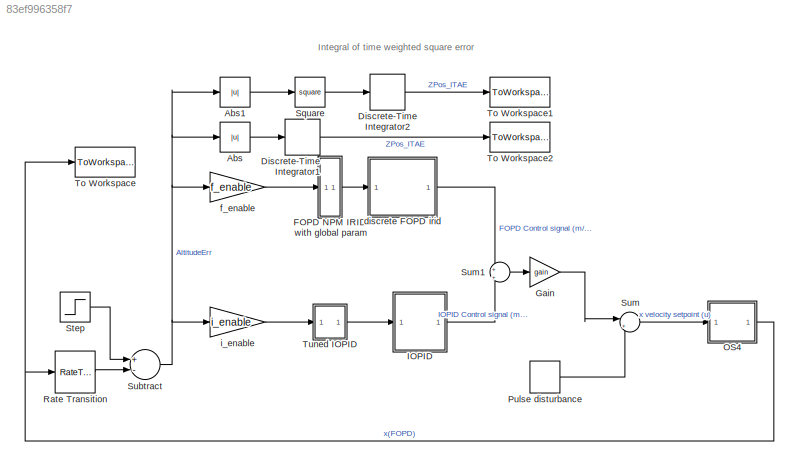
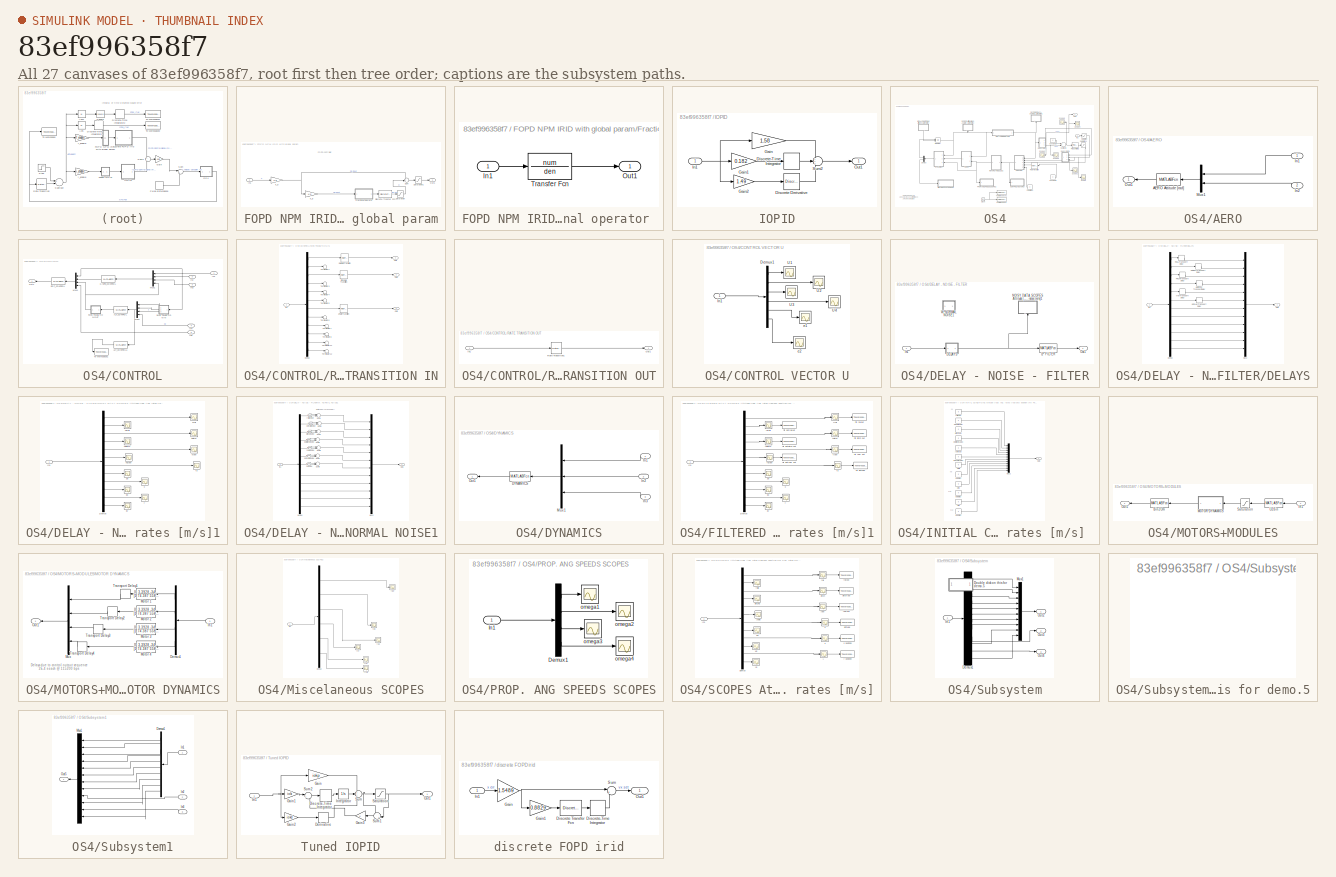
[diagram: thumbnail index - all 27 canvases of the model, root first then tree order]
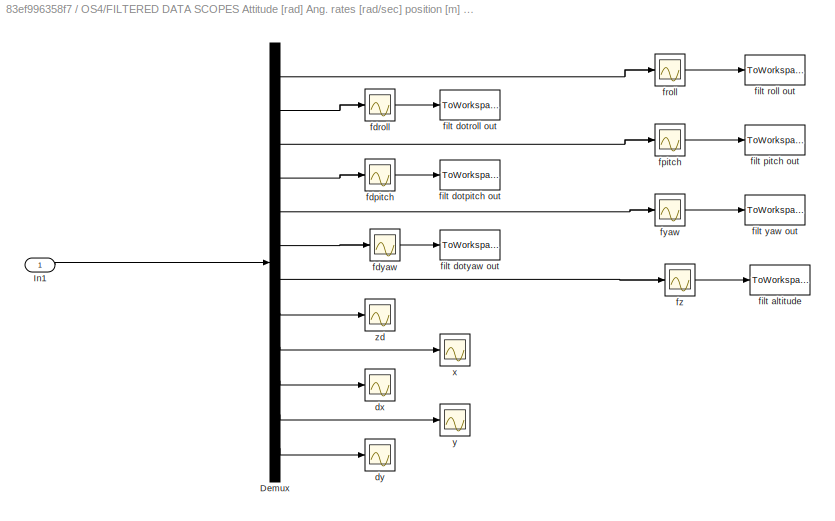
MODEL slx_83ef996358f7
KIND model
CONFIG AbsTol = auto
CONFIG EnableMultiTasking = on
CONFIG FixedStep = 0.01
CONFIG MaxStep = auto
CONFIG MinStep = auto
CONFIG RelTol = 1e-3
CONFIG SampleTimeConstraint = Unconstrained
CONFIG Solver = ode4
CONFIG SolverName = ode4
CONFIG StartTime = 0.0
CONFIG StopTime = 20
BLOCK [Abs] Abs
  SaturateOnIntegerOverflow = off
BLOCK [Abs] Abs1
  SaturateOnIntegerOverflow = off
BLOCK [DiscreteIntegrator] Discrete-Time Integrator1
  ICPrevOutput = DiscIntNeverNeededParam
  ICPrevScaledInput = DiscIntNeverNeededParam
  InitialConditionSetting = Auto
  Ports = [1, 1]
  SampleTime = -1
BLOCK [DiscreteIntegrator] Discrete-Time Integrator2
  ICPrevOutput = DiscIntNeverNeededParam
  ICPrevScaledInput = DiscIntNeverNeededParam
  InitialConditionSetting = Auto
  Ports = [1, 1]
  SampleTime = -1
BLOCK [SubSystem] FOPD NPM IRID with global param
  Commented = through
  Ports = [1, 1]
  RequestExecContextInheritance = off
  ShowPortLabels = none
BLOCK [DiscreteTransferFcn] FOPD NPM IRID with global param/Discrete Transfer Fcn
  Commented = through
  Denominator = dfod.Denominator{1,1}
  InputPortMap = u0
  Numerator = dfod.Num{1,1}
  Ports = [1, 1]
  SampleTime = 0.01
BLOCK [SubSystem] FOPD NPM IRID with global param/Fractional operator 
  Commented = through
  Ports = [1, 1]
  RequestExecContextInheritance = off
BLOCK [Inport] FOPD NPM IRID with global param/Fractional operator /In1
  IconDisplay = Port number
BLOCK [Outport] FOPD NPM IRID with global param/Fractional operator /Out1
  IconDisplay = Port number
BLOCK [TransferFcn] FOPD NPM IRID with global param/Fractional operator /Transfer Fcn
  Denominator = den
  Numerator = num
BLOCK [Inport] FOPD NPM IRID with global param/In1
  IconDisplay = Port number
BLOCK [Outport] FOPD NPM IRID with global param/Out1
  IconDisplay = Port number
BLOCK [Saturate] FOPD NPM IRID with global param/Saturation
  InputPortMap = u0
  LowerLimit = -5
  Ports = [1, 1]
  UpperLimit = 5
BLOCK [Saturate] FOPD NPM IRID with global param/Saturation1
  InputPortMap = u0
  LowerLimit = -5
  Ports = [1, 1]
  UpperLimit = 5
BLOCK [Sum] FOPD NPM IRID with global param/Sum
  IconShape = round
  InputSameDT = off
  Inputs = ++|
  OutDataTypeStr = Inherit: Inherit via internal rule
  Ports = [2, 1]
  SaturateOnIntegerOverflow = off
BLOCK [Gain] FOPD NPM IRID with global param/k_d
  Gain = Kd
  OutDataTypeStr = Inherit: Inherit via internal rule
  ParamDataTypeStr = Inherit: Inherit via internal rule
  SaturateOnIntegerOverflow = off
BLOCK [Gain] FOPD NPM IRID with global param/k_p
  Gain = Kp
  OutDataTypeStr = Inherit: Inherit via internal rule
  ParamDataTypeStr = Inherit: Inherit via internal rule
  SaturateOnIntegerOverflow = off
BLOCK [Gain] Gain
  Gain = gain
  OutDataTypeStr = Inherit: Inherit via internal rule
  ParamDataTypeStr = Inherit: Inherit via internal rule
  SaturateOnIntegerOverflow = off
BLOCK [SubSystem] IOPID
  Ports = [1, 1]
  RequestExecContextInheritance = off
BLOCK [Reference] IOPID/Discrete Derivative  REF=simulink/Discrete/Discrete Derivative
  Ports = [1, 1]
  SourceBlock = simulink/Discrete/Discrete Derivative
  SourceProductBaseCode = SL
  SourceProductName = Simulink
  SourceType = Discrete Derivative
BLOCK [DiscreteIntegrator] IOPID/Discrete-Time Integrator
  ICPrevOutput = DiscIntNeverNeededParam
  ICPrevScaledInput = DiscIntNeverNeededParam
  InitialConditionSetting = Auto
  Ports = [1, 1]
  SampleTime = -1
BLOCK [Gain] IOPID/Gain
  Gain = 1.58
  OutDataTypeStr = Inherit: Inherit via internal rule
  ParamDataTypeStr = Inherit: Inherit via internal rule
  SaturateOnIntegerOverflow = off
BLOCK [Gain] IOPID/Gain1
  Gain = 0.182
  OutDataTypeStr = Inherit: Inherit via internal rule
  ParamDataTypeStr = Inherit: Inherit via internal rule
  SaturateOnIntegerOverflow = off
BLOCK [Gain] IOPID/Gain2
  Gain = 1.49
  OutDataTypeStr = Inherit: Inherit via internal rule
  ParamDataTypeStr = Inherit: Inherit via internal rule
  SaturateOnIntegerOverflow = off
BLOCK [Inport] IOPID/In1
  IconDisplay = Port number
BLOCK [Outport] IOPID/Out1
  IconDisplay = Port number
BLOCK [Sum] IOPID/Sum2
  IconShape = round
  InputSameDT = off
  Inputs = +++
  OutDataTypeStr = Inherit: Inherit via internal rule
  Ports = [3, 1]
  SaturateOnIntegerOverflow = off
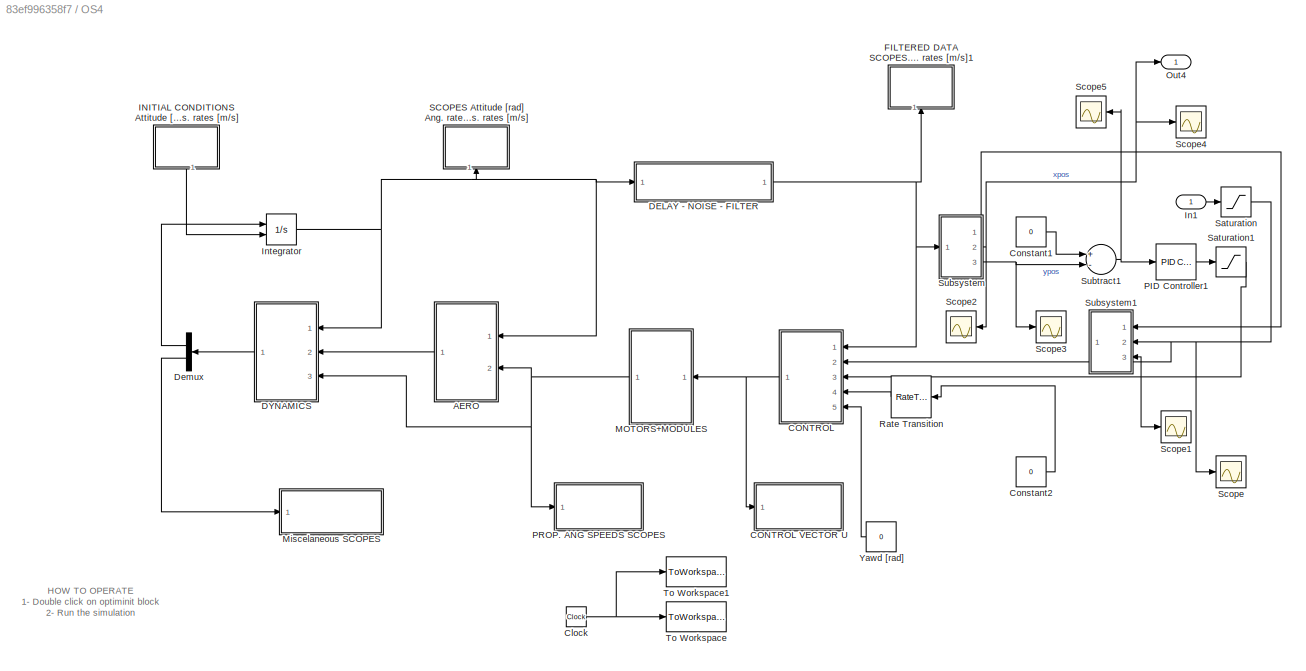
BLOCK [SubSystem] OS4
  Ports = [1, 1]
  RequestExecContextInheritance = off
BLOCK [SubSystem] OS4/AERO
  Ports = [2, 1]
  RequestExecContextInheritance = off
BLOCK [MATLABFcn] OS4/AERO/AERO Attitude [rad]
  MATLABFcn = aero
  OutputDimensions = 24
  Ports = [1, 1]
BLOCK [Inport] OS4/AERO/In1
  IconDisplay = Port number
BLOCK [Inport] OS4/AERO/In2
  IconDisplay = Port number
  Port = 2
BLOCK [Mux] OS4/AERO/Mux1
  DisplayOption = bar
  Inputs = 2
  Ports = [2, 1]
BLOCK [Outport] OS4/AERO/Out1
  IconDisplay = Port number
BLOCK [SubSystem] OS4/CONTROL
  Ports = [5, 1]
  RequestExecContextInheritance = off
BLOCK [SubSystem] OS4/CONTROL VECTOR U
  Ports = [1]
  RequestExecContextInheritance = off
BLOCK [Demux] OS4/CONTROL VECTOR U/Demux1
  Outputs = 6
  Ports = [1, 6]
BLOCK [Inport] OS4/CONTROL VECTOR U/In1
  IconDisplay = Port number
BLOCK [Scope] OS4/CONTROL VECTOR U/U1
  Floating = off
  NumInputPorts = 1
  Ports = [1]
  ScopeSpecificationString = C++SS(StrPVP('Open','off'),StrPVP('TimeRange','3.5'),StrPVP('TickLabels','OneTimeTick'),StrPVP('LimitDataPoints','off'),StrPVP('MaxDataPoints','5000'),StrPVP('SaveToWorkspace','off'),StrPVP('SaveName','ScopeData7'),StrPVP('YMin','144.101'),StrPVP('YMax','144.104'),StrPVP('BlockParamSampleInput','off'),StrPVP('BlockParamSampleTime','-1'),StrPVP('ZoomMode','on'),StrPVP('Grid','on'),StrPVP('DataForma...<+148ch>
BLOCK [Scope] OS4/CONTROL VECTOR U/U2
  Floating = off
  NumInputPorts = 1
  Ports = [1]
  ScopeSpecificationString = C++SS(StrPVP('Open','off'),StrPVP('TimeRange','auto'),StrPVP('TickLabels','OneTimeTick'),StrPVP('LimitDataPoints','off'),StrPVP('MaxDataPoints','5000'),StrPVP('SaveToWorkspace','off'),StrPVP('SaveName','ScopeData8'),StrPVP('YMin','-0.6'),StrPVP('YMax','0.4'),StrPVP('BlockParamSampleInput','off'),StrPVP('BlockParamSampleTime','-1'),StrPVP('ZoomMode','on'),StrPVP('Grid','on'),StrPVP('DataFormat','St...<+144ch>
BLOCK [Scope] OS4/CONTROL VECTOR U/U3
  Floating = off
  NumInputPorts = 1
  Ports = [1]
  ScopeSpecificationString = C++SS(StrPVP('Open','off'),StrPVP('TimeRange','auto'),StrPVP('TickLabels','OneTimeTick'),StrPVP('LimitDataPoints','off'),StrPVP('MaxDataPoints','5000'),StrPVP('SaveToWorkspace','off'),StrPVP('SaveName','ScopeData9'),StrPVP('YMin','-0.65'),StrPVP('YMax','0.35'),StrPVP('BlockParamSampleInput','off'),StrPVP('BlockParamSampleTime','-1'),StrPVP('ZoomMode','on'),StrPVP('Grid','on'),StrPVP('DataFormat','...<+147ch>
BLOCK [Scope] OS4/CONTROL VECTOR U/U4
  Floating = off
  NumInputPorts = 1
  Ports = [1]
  ScopeSpecificationString = C++SS(StrPVP('Open','off'),StrPVP('TimeRange','auto'),StrPVP('TickLabels','OneTimeTick'),StrPVP('LimitDataPoints','off'),StrPVP('MaxDataPoints','5000'),StrPVP('SaveToWorkspace','off'),StrPVP('SaveName','ScopeData14'),StrPVP('YMin','0'),StrPVP('YMax','150'),StrPVP('BlockParamSampleInput','off'),StrPVP('BlockParamSampleTime','-1'),StrPVP('ZoomMode','on'),StrPVP('Grid','on'),StrPVP('DataFormat','Stru...<+140ch>
BLOCK [Scope] OS4/CONTROL VECTOR U/e1
  Floating = off
  NumInputPorts = 1
  Ports = [1]
  ScopeSpecificationString = C++SS(StrPVP('Open','off'),StrPVP('TimeRange','auto'),StrPVP('TickLabels','OneTimeTick'),StrPVP('LimitDataPoints','off'),StrPVP('MaxDataPoints','5000'),StrPVP('SaveToWorkspace','off'),StrPVP('SaveName','ScopeData11'),StrPVP('YMin','0'),StrPVP('YMax','150'),StrPVP('BlockParamSampleInput','off'),StrPVP('BlockParamSampleTime','-1'),StrPVP('ZoomMode','on'),StrPVP('Grid','on'),StrPVP('DataFormat','Stru...<+142ch>
BLOCK [Scope] OS4/CONTROL VECTOR U/e2
  Floating = off
  NumInputPorts = 1
  Ports = [1]
  ScopeSpecificationString = C++SS(StrPVP('Open','off'),StrPVP('TimeRange','auto'),StrPVP('TickLabels','OneTimeTick'),StrPVP('LimitDataPoints','off'),StrPVP('MaxDataPoints','5000'),StrPVP('SaveToWorkspace','off'),StrPVP('SaveName','ScopeData12'),StrPVP('YMin','0'),StrPVP('YMax','150'),StrPVP('BlockParamSampleInput','off'),StrPVP('BlockParamSampleTime','-1'),StrPVP('ZoomMode','on'),StrPVP('Grid','on'),StrPVP('DataFormat','Stru...<+141ch>
BLOCK [MATLABFcn] OS4/CONTROL/ALT_CONTROL
  MATLABFcn = alt_control
  OutputDimensions = 1
  Ports = [1, 1]
  SampleTime = 0.05
BLOCK [MATLABFcn] OS4/CONTROL/ALT_CONTROL1
  MATLABFcn = error_altitude
  OutputDimensions = 1
  Ports = [1, 1]
  SampleTime = 0.05
BLOCK [Inport] OS4/CONTROL/In1
  IconDisplay = Port number
BLOCK [Inport] OS4/CONTROL/In2
  IconDisplay = Port number
  Port = 2
BLOCK [Inport] OS4/CONTROL/In3
  IconDisplay = Port number
  Port = 3
BLOCK [Inport] OS4/CONTROL/In4
  IconDisplay = Port number
  Port = 4
BLOCK [Inport] OS4/CONTROL/In5
  IconDisplay = Port number
  Port = 5
BLOCK [Mux] OS4/CONTROL/Mux1
  DisplayOption = bar
  Ports = [4, 1]
BLOCK [Mux] OS4/CONTROL/Mux3
  DisplayOption = bar
  Ports = [4, 1]
BLOCK [Mux] OS4/CONTROL/Mux4
  DisplayOption = bar
  Ports = [4, 1]
BLOCK [Outport] OS4/CONTROL/Out1
  IconDisplay = Port number
BLOCK [SubSystem] OS4/CONTROL/RATE TRANSITION IN
  Ports = [1, 3]
  RequestExecContextInheritance = off
BLOCK [Demux] OS4/CONTROL/RATE TRANSITION IN/Demux
  Outputs = 12
  Ports = [1, 12]
BLOCK [Inport] OS4/CONTROL/RATE TRANSITION IN/In1
  IconDisplay = Port number
BLOCK [Outport] OS4/CONTROL/RATE TRANSITION IN/Out1
  IconDisplay = Port number
BLOCK [Outport] OS4/CONTROL/RATE TRANSITION IN/Out2
  IconDisplay = Port number
  Port = 2
BLOCK [Outport] OS4/CONTROL/RATE TRANSITION IN/Out3
  IconDisplay = Port number
  Port = 3
BLOCK [RateTransition] OS4/CONTROL/RATE TRANSITION IN/Pitch Rate Transition
  Deterministic = off
  OutPortSampleTime = 50E-3
BLOCK [RateTransition] OS4/CONTROL/RATE TRANSITION IN/Roll Rate Transition
  Deterministic = off
  OutPortSampleTime = 50E-3
BLOCK [Terminator] OS4/CONTROL/RATE TRANSITION IN/Terminator1
BLOCK [Terminator] OS4/CONTROL/RATE TRANSITION IN/Terminator12
BLOCK [Terminator] OS4/CONTROL/RATE TRANSITION IN/Terminator14
BLOCK [Terminator] OS4/CONTROL/RATE TRANSITION IN/Terminator3
BLOCK [Terminator] OS4/CONTROL/RATE TRANSITION IN/Terminator4
BLOCK [Terminator] OS4/CONTROL/RATE TRANSITION IN/Terminator5
BLOCK [Terminator] OS4/CONTROL/RATE TRANSITION IN/Terminator6
BLOCK [Terminator] OS4/CONTROL/RATE TRANSITION IN/Terminator7
BLOCK [Terminator] OS4/CONTROL/RATE TRANSITION IN/Terminator8
BLOCK [RateTransition] OS4/CONTROL/RATE TRANSITION IN/Z Rate Transition
  Deterministic = off
  OutPortSampleTime = 50E-3
BLOCK [SubSystem] OS4/CONTROL/RATE TRANSITION OUT
  Ports = [1, 1]
  RequestExecContextInheritance = off
BLOCK [Inport] OS4/CONTROL/RATE TRANSITION OUT/In1
  IconDisplay = Port number
BLOCK [Outport] OS4/CONTROL/RATE TRANSITION OUT/Out1
  IconDisplay = Port number
BLOCK [RateTransition] OS4/CONTROL/RATE TRANSITION OUT/Rate Transition1
  Deterministic = off
BLOCK [MATLABFcn] OS4/CONTROL/ROT_CONTROL
  MATLABFcn = back_rot_control
  OutputDimensions = 6
  Ports = [1, 1]
BLOCK [ToWorkspace] OS4/CONTROL/To Workspace1
  MaxDataPoints = inf
  Ports = [1]
  SampleTime = -1
  VariableName = e_alt
BLOCK [MATLABFcn] OS4/CONTROL/x,ySPD_CONTROL
  MATLABFcn = spd_control
  OutputDimensions = 2
  Ports = [1, 1]
BLOCK [Clock] OS4/Clock
BLOCK [Constant] OS4/Constant1
  Value = 0
BLOCK [Constant] OS4/Constant2
  Value = 0
BLOCK [SubSystem] OS4/DELAY - NOISE - FILTER
  Ports = [1, 1]
  RequestExecContextInheritance = off
BLOCK [SubSystem] OS4/DELAY - NOISE - FILTER/DELAYS
  Ports = [1, 1]
  RequestExecContextInheritance = off
BLOCK [Demux] OS4/DELAY - NOISE - FILTER/DELAYS/Demux
  Outputs = 12
  Ports = [1, 12]
BLOCK [Inport] OS4/DELAY - NOISE - FILTER/DELAYS/In1
  IconDisplay = Port number
BLOCK [Mux] OS4/DELAY - NOISE - FILTER/DELAYS/Mux2
  DisplayOption = bar
  Inputs = 12
  Ports = [12, 1]
BLOCK [Outport] OS4/DELAY - NOISE - FILTER/DELAYS/Out1
  IconDisplay = Port number
BLOCK [TransportDelay] OS4/DELAY - NOISE - FILTER/DELAYS/PITCH Transport Delay
  DelayTime = 8E-3
  Ports = [1, 1]
BLOCK [TransportDelay] OS4/DELAY - NOISE - FILTER/DELAYS/ROLL Transport Delay
  DelayTime = 8E-3
  Ports = [1, 1]
BLOCK [TransportDelay] OS4/DELAY - NOISE - FILTER/DELAYS/YAW Transport Delay
  DelayTime = 8E-3
  Ports = [1, 1]
BLOCK [TransportDelay] OS4/DELAY - NOISE - FILTER/DELAYS/dot ROLLTransport Delay
  DelayTime = 4.5E-3
  Ports = [1, 1]
BLOCK [TransportDelay] OS4/DELAY - NOISE - FILTER/DELAYS/dotPITCH Transport Delay
  DelayTime = 4.5E-3
  Ports = [1, 1]
BLOCK [TransportDelay] OS4/DELAY - NOISE - FILTER/DELAYS/dotYAW Transport Delay
  DelayTime = 4.5E-3
  Ports = [1, 1]
BLOCK [Inport] OS4/DELAY - NOISE - FILTER/In1
  IconDisplay = Port number
BLOCK [MATLABFcn] OS4/DELAY - NOISE - FILTER/LP FILTER
  MATLABFcn = sam5_filter
  OutputDimensions = 12
  OutputSignalType = real
  Ports = [1, 1]
BLOCK [SubSystem] OS4/DELAY - NOISE - FILTER/NOISY DATA SCOPES Attitude [rad] Ang. rates [rad//sec] position [m] Pos. rates [m//s]1
  Ports = [1]
  RequestExecContextInheritance = off
BLOCK [Demux] OS4/DELAY - NOISE - FILTER/NOISY DATA SCOPES Attitude [rad] Ang. rates [rad//sec] position [m] Pos. rates [m//s]1/Demux
  Outputs = 12
  Ports = [1, 12]
BLOCK [Inport] OS4/DELAY - NOISE - FILTER/NOISY DATA SCOPES Attitude [rad] Ang. rates [rad//sec] position [m] Pos. rates [m//s]1/In1
  IconDisplay = Port number
BLOCK [Scope] OS4/DELAY - NOISE - FILTER/NOISY DATA SCOPES Attitude [rad] Ang. rates [rad//sec] position [m] Pos. rates [m//s]1/dx
  Floating = off
  NumInputPorts = 1
  Ports = [1]
  ScopeSpecificationString = C++SS(StrPVP('Open','off'),StrPVP('TimeRange','5'),StrPVP('TickLabels','OneTimeTick'),StrPVP('LimitDataPoints','off'),StrPVP('MaxDataPoints','5000'),StrPVP('SaveToWorkspace','off'),StrPVP('SaveName','ScopeData5'),StrPVP('YMin','0'),StrPVP('YMax','0.009'),StrPVP('BlockParamSampleInput','off'),StrPVP('BlockParamSampleTime','-1'),StrPVP('ZoomMode','on'),StrPVP('Grid','on'),StrPVP('DataFormat','Struct...<+138ch>
BLOCK [Scope] OS4/DELAY - NOISE - FILTER/NOISY DATA SCOPES Attitude [rad] Ang. rates [rad//sec] position [m] Pos. rates [m//s]1/dy
  Floating = off
  NumInputPorts = 1
  Ports = [1]
  ScopeSpecificationString = C++SS(StrPVP('Open','off'),StrPVP('TimeRange','5'),StrPVP('TickLabels','OneTimeTick'),StrPVP('LimitDataPoints','off'),StrPVP('MaxDataPoints','5000'),StrPVP('SaveToWorkspace','off'),StrPVP('SaveName','ScopeData10'),StrPVP('YMin','0'),StrPVP('YMax','0.009'),StrPVP('BlockParamSampleInput','off'),StrPVP('BlockParamSampleTime','-1'),StrPVP('ZoomMode','on'),StrPVP('Grid','on'),StrPVP('DataFormat','Struc...<+139ch>
BLOCK [Scope] OS4/DELAY - NOISE - FILTER/NOISY DATA SCOPES Attitude [rad] Ang. rates [rad//sec] position [m] Pos. rates [m//s]1/fz
  Floating = off
  NumInputPorts = 1
  Ports = [1]
  ScopeSpecificationString = C++SS(StrPVP('Open','off'),StrPVP('TimeRange','5'),StrPVP('TickLabels','OneTimeTick'),StrPVP('LimitDataPoints','off'),StrPVP('MaxDataPoints','5000'),StrPVP('SaveToWorkspace','off'),StrPVP('SaveName','ScopeData17'),StrPVP('YMin','0'),StrPVP('YMax','0.009'),StrPVP('BlockParamSampleInput','off'),StrPVP('BlockParamSampleTime','-1'),StrPVP('ZoomMode','on'),StrPVP('Grid','on'),StrPVP('DataFormat','Struc...<+139ch>
BLOCK [Scope] OS4/DELAY - NOISE - FILTER/NOISY DATA SCOPES Attitude [rad] Ang. rates [rad//sec] position [m] Pos. rates [m//s]1/ndpitch
  Floating = off
  NumInputPorts = 1
  Ports = [1]
  ScopeSpecificationString = C++SS(StrPVP('Open','off'),StrPVP('TimeRange','auto'),StrPVP('TickLabels','OneTimeTick'),StrPVP('LimitDataPoints','off'),StrPVP('MaxDataPoints','5000'),StrPVP('SaveToWorkspace','off'),StrPVP('SaveName','ScopeData15'),StrPVP('YMin','-2250'),StrPVP('YMax','2250'),StrPVP('BlockParamSampleInput','off'),StrPVP('BlockParamSampleTime','-1'),StrPVP('ZoomMode','on'),StrPVP('Grid','on'),StrPVP('DataFormat',...<+147ch>
BLOCK [Scope] OS4/DELAY - NOISE - FILTER/NOISY DATA SCOPES Attitude [rad] Ang. rates [rad//sec] position [m] Pos. rates [m//s]1/ndroll
  Floating = off
  NumInputPorts = 1
  Ports = [1]
  ScopeSpecificationString = C++SS(StrPVP('Open','off'),StrPVP('TimeRange','auto'),StrPVP('TickLabels','OneTimeTick'),StrPVP('LimitDataPoints','off'),StrPVP('MaxDataPoints','5000'),StrPVP('SaveToWorkspace','off'),StrPVP('SaveName','ScopeData14'),StrPVP('YMin','-0.25'),StrPVP('YMax','-0.05'),StrPVP('BlockParamSampleInput','off'),StrPVP('BlockParamSampleTime','-1'),StrPVP('ZoomMode','on'),StrPVP('Grid','on'),StrPVP('DataFormat'...<+146ch>
BLOCK [Scope] OS4/DELAY - NOISE - FILTER/NOISY DATA SCOPES Attitude [rad] Ang. rates [rad//sec] position [m] Pos. rates [m//s]1/ndyaw
  Floating = off
  NumInputPorts = 1
  Ports = [1]
  ScopeSpecificationString = C++SS(StrPVP('Open','off'),StrPVP('TimeRange','18'),StrPVP('TickLabels','OneTimeTick'),StrPVP('LimitDataPoints','off'),StrPVP('MaxDataPoints','5000'),StrPVP('SaveToWorkspace','off'),StrPVP('SaveName','ScopeData16'),StrPVP('YMin','-200'),StrPVP('YMax','200'),StrPVP('BlockParamSampleInput','off'),StrPVP('BlockParamSampleTime','-1'),StrPVP('ZoomMode','on'),StrPVP('Grid','on'),StrPVP('DataFormat','Str...<+141ch>  <repeated x3 — deduplicated; at blocks: ndyaw, fdyaw, raa>
BLOCK [Scope] OS4/DELAY - NOISE - FILTER/NOISY DATA SCOPES Attitude [rad] Ang. rates [rad//sec] position [m] Pos. rates [m//s]1/npitch
  Floating = off
  NumInputPorts = 1
  Ports = [1]
  ScopeSpecificationString = C++SS(StrPVP('Open','off'),StrPVP('TimeRange','4'),StrPVP('TickLabels','OneTimeTick'),StrPVP('LimitDataPoints','off'),StrPVP('MaxDataPoints','5000'),StrPVP('SaveToWorkspace','off'),StrPVP('SaveName','ScopeData1'),StrPVP('YMin','-1'),StrPVP('YMax','1'),StrPVP('BlockParamSampleInput','off'),StrPVP('BlockParamSampleTime','-1'),StrPVP('ZoomMode','on'),StrPVP('Grid','on'),StrPVP('DataFormat','Structure...<+138ch>
BLOCK [Scope] OS4/DELAY - NOISE - FILTER/NOISY DATA SCOPES Attitude [rad] Ang. rates [rad//sec] position [m] Pos. rates [m//s]1/nroll
  Floating = off
  NumInputPorts = 1
  Ports = [1]
  ScopeSpecificationString = C++SS(StrPVP('Open','off'),StrPVP('TimeRange','0.25'),StrPVP('TickLabels','OneTimeTick'),StrPVP('LimitDataPoints','off'),StrPVP('MaxDataPoints','5000'),StrPVP('SaveToWorkspace','off'),StrPVP('SaveName','ScopeData'),StrPVP('YMin','-1'),StrPVP('YMax','1'),StrPVP('BlockParamSampleInput','off'),StrPVP('BlockParamSampleTime','-1'),StrPVP('ZoomMode','on'),StrPVP('Grid','on'),StrPVP('DataFormat','Structu...<+137ch>
BLOCK [Scope] OS4/DELAY - NOISE - FILTER/NOISY DATA SCOPES Attitude [rad] Ang. rates [rad//sec] position [m] Pos. rates [m//s]1/nyaw
  Floating = off
  NumInputPorts = 1
  Ports = [1]
  ScopeSpecificationString = C++SS(StrPVP('Open','off'),StrPVP('TimeRange','5'),StrPVP('TickLabels','OneTimeTick'),StrPVP('LimitDataPoints','off'),StrPVP('MaxDataPoints','5000'),StrPVP('SaveToWorkspace','off'),StrPVP('SaveName','ScopeData2'),StrPVP('YMin','0'),StrPVP('YMax','0.22'),StrPVP('BlockParamSampleInput','off'),StrPVP('BlockParamSampleTime','-1'),StrPVP('ZoomMode','on'),StrPVP('Grid','on'),StrPVP('DataFormat','Structu...<+140ch>
BLOCK [Scope] OS4/DELAY - NOISE - FILTER/NOISY DATA SCOPES Attitude [rad] Ang. rates [rad//sec] position [m] Pos. rates [m//s]1/x
  Floating = off
  NumInputPorts = 1
  Ports = [1]
  ScopeSpecificationString = C++SS(StrPVP('Open','off'),StrPVP('TimeRange','5'),StrPVP('TickLabels','OneTimeTick'),StrPVP('LimitDataPoints','off'),StrPVP('MaxDataPoints','5000'),StrPVP('SaveToWorkspace','off'),StrPVP('SaveName','ScopeData4'),StrPVP('YMin','0'),StrPVP('YMax','0.009'),StrPVP('BlockParamSampleInput','off'),StrPVP('BlockParamSampleTime','-1'),StrPVP('ZoomMode','on'),StrPVP('Grid','on'),StrPVP('DataFormat','Struct...<+138ch>
BLOCK [Scope] OS4/DELAY - NOISE - FILTER/NOISY DATA SCOPES Attitude [rad] Ang. rates [rad//sec] position [m] Pos. rates [m//s]1/y
  Floating = off
  NumInputPorts = 1
  Ports = [1]
  ScopeSpecificationString = C++SS(StrPVP('Open','off'),StrPVP('TimeRange','5'),StrPVP('TickLabels','OneTimeTick'),StrPVP('LimitDataPoints','off'),StrPVP('MaxDataPoints','5000'),StrPVP('SaveToWorkspace','off'),StrPVP('SaveName','ScopeData6'),StrPVP('YMin','0'),StrPVP('YMax','0.009'),StrPVP('BlockParamSampleInput','off'),StrPVP('BlockParamSampleTime','-1'),StrPVP('ZoomMode','on'),StrPVP('Grid','on'),StrPVP('DataFormat','Struct...<+138ch>
BLOCK [Scope] OS4/DELAY - NOISE - FILTER/NOISY DATA SCOPES Attitude [rad] Ang. rates [rad//sec] position [m] Pos. rates [m//s]1/zd
  Floating = off
  NumInputPorts = 1
  Ports = [1]
  ScopeSpecificationString = C++SS(StrPVP('Open','off'),StrPVP('TimeRange','10'),StrPVP('TickLabels','OneTimeTick'),StrPVP('LimitDataPoints','off'),StrPVP('MaxDataPoints','5000'),StrPVP('SaveToWorkspace','off'),StrPVP('SaveName','ScopeData18'),StrPVP('YMin','-110.5'),StrPVP('YMax','-107.25'),StrPVP('BlockParamSampleInput','off'),StrPVP('BlockParamSampleTime','-1'),StrPVP('ZoomMode','on'),StrPVP('Grid','on'),StrPVP('DataFormat...<+147ch>  <repeated x4 — deduplicated; at blocks: zd, rhf>
BLOCK [Outport] OS4/DELAY - NOISE - FILTER/Out1
  IconDisplay = Port number
BLOCK [SubSystem] OS4/DELAY - NOISE - FILTER/W. NORMAL NOISE1
  Ports = [1, 1]
  RequestExecContextInheritance = off
BLOCK [Demux] OS4/DELAY - NOISE - FILTER/W. NORMAL NOISE1/Demux
  Outputs = 12
  Ports = [1, 12]
BLOCK [Inport] OS4/DELAY - NOISE - FILTER/W. NORMAL NOISE1/In1
  IconDisplay = Port number
BLOCK [Mux] OS4/DELAY - NOISE - FILTER/W. NORMAL NOISE1/Mux2
  DisplayOption = bar
  Inputs = 12
  Ports = [12, 1]
BLOCK [Outport] OS4/DELAY - NOISE - FILTER/W. NORMAL NOISE1/Out1
  IconDisplay = Port number
BLOCK [Sum] OS4/DELAY - NOISE - FILTER/W. NORMAL NOISE1/Sum1
  IconShape = round
  InputSameDT = off
  Inputs = |++
  OutDataTypeStr = Inherit: Inherit via internal rule
  Ports = [2, 1]
BLOCK [Sum] OS4/DELAY - NOISE - FILTER/W. NORMAL NOISE1/Sum2
  IconShape = round
  InputSameDT = off
  Inputs = |++
  OutDataTypeStr = Inherit: Inherit via internal rule
  Ports = [2, 1]
BLOCK [Sum] OS4/DELAY - NOISE - FILTER/W. NORMAL NOISE1/Sum4
  IconShape = round
  InputSameDT = off
  Inputs = |++
  OutDataTypeStr = Inherit: Inherit via internal rule
  Ports = [2, 1]
BLOCK [Sum] OS4/DELAY - NOISE - FILTER/W. NORMAL NOISE1/Sum5
  IconShape = round
  InputSameDT = off
  Inputs = |++
  OutDataTypeStr = Inherit: Inherit via internal rule
  Ports = [2, 1]
BLOCK [Sum] OS4/DELAY - NOISE - FILTER/W. NORMAL NOISE1/Sum6
  IconShape = round
  InputSameDT = off
  Inputs = |++
  OutDataTypeStr = Inherit: Inherit via internal rule
  Ports = [2, 1]
BLOCK [Sum] OS4/DELAY - NOISE - FILTER/W. NORMAL NOISE1/Sum7
  IconShape = round
  InputSameDT = off
  Inputs = |++
  OutDataTypeStr = Inherit: Inherit via internal rule
  Ports = [2, 1]
BLOCK [Sum] OS4/DELAY - NOISE - FILTER/W. NORMAL NOISE1/Sum8
  IconShape = round
  InputSameDT = off
  Inputs = |++
  OutDataTypeStr = Inherit: Inherit via internal rule
  Ports = [2, 1]
BLOCK [Reference] OS4/DELAY - NOISE - FILTER/W. NORMAL NOISE1/dot pitchw noise  REF=simulink/Sources/Band-Limited
White Noise
  Ports = [0, 1]
  SourceBlock = simulink/Sources/Band-Limited\nWhite Noise
  SourceProductBaseCode = SL
  SourceProductName = Simulink
  SourceType = Band-Limited White Noise.
BLOCK [Reference] OS4/DELAY - NOISE - FILTER/W. NORMAL NOISE1/dot roll w noise  REF=simulink/Sources/Band-Limited
White Noise
  Ports = [0, 1]
  SourceBlock = simulink/Sources/Band-Limited\nWhite Noise
  SourceProductBaseCode = SL
  SourceProductName = Simulink
  SourceType = Band-Limited White Noise.
BLOCK [Reference] OS4/DELAY - NOISE - FILTER/W. NORMAL NOISE1/dot yaw w noise  REF=simulink/Sources/Band-Limited
White Noise
  Ports = [0, 1]
  SourceBlock = simulink/Sources/Band-Limited\nWhite Noise
  SourceProductBaseCode = SL
  SourceProductName = Simulink
  SourceType = Band-Limited White Noise.
BLOCK [Reference] OS4/DELAY - NOISE - FILTER/W. NORMAL NOISE1/pitch w noise  REF=simulink/Sources/Band-Limited
White Noise
  Ports = [0, 1]
  SourceBlock = simulink/Sources/Band-Limited\nWhite Noise
  SourceProductBaseCode = SL
  SourceProductName = Simulink
  SourceType = Band-Limited White Noise.
BLOCK [Reference] OS4/DELAY - NOISE - FILTER/W. NORMAL NOISE1/roll w noise  REF=simulink/Sources/Band-Limited
White Noise
  Ports = [0, 1]
  SourceBlock = simulink/Sources/Band-Limited\nWhite Noise
  SourceProductBaseCode = SL
  SourceProductName = Simulink
  SourceType = Band-Limited White Noise.
BLOCK [Reference] OS4/DELAY - NOISE - FILTER/W. NORMAL NOISE1/yaw w noise  REF=simulink/Sources/Band-Limited
White Noise
  Ports = [0, 1]
  SourceBlock = simulink/Sources/Band-Limited\nWhite Noise
  SourceProductBaseCode = SL
  SourceProductName = Simulink
  SourceType = Band-Limited White Noise.
BLOCK [Reference] OS4/DELAY - NOISE - FILTER/W. NORMAL NOISE1/z w noise  REF=simulink/Sources/Band-Limited
White Noise
  Ports = [0, 1]
  SourceBlock = simulink/Sources/Band-Limited\nWhite Noise
  SourceProductBaseCode = SL
  SourceProductName = Simulink
  SourceType = Band-Limited White Noise.
BLOCK [SubSystem] OS4/DYNAMICS
  Ports = [3, 1]
  RequestExecContextInheritance = off
BLOCK [MATLABFcn] OS4/DYNAMICS/DYNAMICS
  MATLABFcn = dinamica
  OutputDimensions = 18
  Ports = [1, 1]
BLOCK [Inport] OS4/DYNAMICS/In1
  IconDisplay = Port number
BLOCK [Inport] OS4/DYNAMICS/In2
  IconDisplay = Port number
  Port = 2
BLOCK [Inport] OS4/DYNAMICS/In3
  IconDisplay = Port number
  Port = 3
BLOCK [Mux] OS4/DYNAMICS/Mux1
  DisplayOption = bar
  Inputs = 3
  Ports = [3, 1]
BLOCK [Outport] OS4/DYNAMICS/Out1
  IconDisplay = Port number
BLOCK [Demux] OS4/Demux
  Outputs = 2
  Ports = [1, 2]
BLOCK [SubSystem] OS4/FILTERED DATA SCOPES Attitude [rad] Ang. rates [rad//sec] position [m] Pos. rates [m//s]1
  Ports = [1]
  RequestExecContextInheritance = off
BLOCK [Demux] OS4/FILTERED DATA SCOPES Attitude [rad] Ang. rates [rad//sec] position [m] Pos. rates [m//s]1/Demux
  Outputs = 12
  Ports = [1, 12]
BLOCK [Inport] OS4/FILTERED DATA SCOPES Attitude [rad] Ang. rates [rad//sec] position [m] Pos. rates [m//s]1/In1
  IconDisplay = Port number
BLOCK [Scope] OS4/FILTERED DATA SCOPES Attitude [rad] Ang. rates [rad//sec] position [m] Pos. rates [m//s]1/dx
  Floating = off
  NumInputPorts = 1
  Ports = [1]
  ScopeSpecificationString = C++SS(StrPVP('Open','off'),StrPVP('TimeRange','5'),StrPVP('TickLabels','OneTimeTick'),StrPVP('LimitDataPoints','off'),StrPVP('MaxDataPoints','5000'),StrPVP('SaveToWorkspace','off'),StrPVP('SaveName','ScopeData5'),StrPVP('YMin','0'),StrPVP('YMax','0.009'),StrPVP('BlockParamSampleInput','off'),StrPVP('BlockParamSampleTime','-1'),StrPVP('ZoomMode','on'),StrPVP('Grid','on'),StrPVP('DataFormat','Struct...<+140ch>
BLOCK [Scope] OS4/FILTERED DATA SCOPES Attitude [rad] Ang. rates [rad//sec] position [m] Pos. rates [m//s]1/dy
  Floating = off
  NumInputPorts = 1
  Ports = [1]
  ScopeSpecificationString = C++SS(StrPVP('Open','off'),StrPVP('TimeRange','5'),StrPVP('TickLabels','OneTimeTick'),StrPVP('LimitDataPoints','off'),StrPVP('MaxDataPoints','5000'),StrPVP('SaveToWorkspace','off'),StrPVP('SaveName','ScopeData10'),StrPVP('YMin','0'),StrPVP('YMax','0.009'),StrPVP('BlockParamSampleInput','off'),StrPVP('BlockParamSampleTime','-1'),StrPVP('ZoomMode','on'),StrPVP('Grid','on'),StrPVP('DataFormat','Struc...<+141ch>
BLOCK [Scope] OS4/FILTERED DATA SCOPES Attitude [rad] Ang. rates [rad//sec] position [m] Pos. rates [m//s]1/fdpitch
  Floating = off
  NumInputPorts = 1
  Ports = [1]
  ScopeSpecificationString = C++SS(StrPVP('Open','off'),StrPVP('TimeRange','auto'),StrPVP('TickLabels','OneTimeTick'),StrPVP('LimitDataPoints','off'),StrPVP('MaxDataPoints','5000'),StrPVP('SaveToWorkspace','off'),StrPVP('SaveName','ScopeData15'),StrPVP('YMin','-2250'),StrPVP('YMax','2250'),StrPVP('BlockParamSampleInput','off'),StrPVP('BlockParamSampleTime','-1'),StrPVP('ZoomMode','on'),StrPVP('Grid','on'),StrPVP('DataFormat',...<+147ch>
BLOCK [Scope] OS4/FILTERED DATA SCOPES Attitude [rad] Ang. rates [rad//sec] position [m] Pos. rates [m//s]1/fdroll
  Floating = off
  NumInputPorts = 1
  Ports = [1]
  ScopeSpecificationString = C++SS(StrPVP('Open','off'),StrPVP('TimeRange','auto'),StrPVP('TickLabels','OneTimeTick'),StrPVP('LimitDataPoints','off'),StrPVP('MaxDataPoints','5000'),StrPVP('SaveToWorkspace','off'),StrPVP('SaveName','ScopeData14'),StrPVP('YMin','-0.25'),StrPVP('YMax','-0.05'),StrPVP('BlockParamSampleInput','off'),StrPVP('BlockParamSampleTime','-1'),StrPVP('ZoomMode','on'),StrPVP('Grid','on'),StrPVP('DataFormat'...<+148ch>
BLOCK [Scope] OS4/FILTERED DATA SCOPES Attitude [rad] Ang. rates [rad//sec] position [m] Pos. rates [m//s]1/fdyaw
  Floating = off
  NumInputPorts = 1
  Ports = [1]
BLOCK [ToWorkspace] OS4/FILTERED DATA SCOPES Attitude [rad] Ang. rates [rad//sec] position [m] Pos. rates [m//s]1/filt altitude
  MaxDataPoints = inf
  Ports = [1]
  SampleTime = -1
  VariableName = fz
BLOCK [ToWorkspace] OS4/FILTERED DATA SCOPES Attitude [rad] Ang. rates [rad//sec] position [m] Pos. rates [m//s]1/filt dotpitch out
  MaxDataPoints = inf
  Ports = [1]
  SampleTime = -1
  VariableName = dotfpitch
BLOCK [ToWorkspace] OS4/FILTERED DATA SCOPES Attitude [rad] Ang. rates [rad//sec] position [m] Pos. rates [m//s]1/filt dotroll out
  MaxDataPoints = inf
  Ports = [1]
  SampleTime = -1
  VariableName = dotfroll
BLOCK [ToWorkspace] OS4/FILTERED DATA SCOPES Attitude [rad] Ang. rates [rad//sec] position [m] Pos. rates [m//s]1/filt dotyaw out
  MaxDataPoints = inf
  Ports = [1]
  SampleTime = -1
  VariableName = dotfyaw
BLOCK [ToWorkspace] OS4/FILTERED DATA SCOPES Attitude [rad] Ang. rates [rad//sec] position [m] Pos. rates [m//s]1/filt pitch out
  MaxDataPoints = inf
  Ports = [1]
  SampleTime = -1
  VariableName = fpitch
BLOCK [ToWorkspace] OS4/FILTERED DATA SCOPES Attitude [rad] Ang. rates [rad//sec] position [m] Pos. rates [m//s]1/filt roll out
  MaxDataPoints = inf
  Ports = [1]
  SampleTime = -1
  VariableName = froll
BLOCK [ToWorkspace] OS4/FILTERED DATA SCOPES Attitude [rad] Ang. rates [rad//sec] position [m] Pos. rates [m//s]1/filt yaw out
  MaxDataPoints = inf
  Ports = [1]
  SampleTime = -1
  VariableName = fyaw
BLOCK [Scope] OS4/FILTERED DATA SCOPES Attitude [rad] Ang. rates [rad//sec] position [m] Pos. rates [m//s]1/fpitch
  Floating = off
  NumInputPorts = 1
  Ports = [1]
  ScopeSpecificationString = C++SS(StrPVP('Open','off'),StrPVP('TimeRange','4'),StrPVP('TickLabels','OneTimeTick'),StrPVP('LimitDataPoints','off'),StrPVP('MaxDataPoints','5000'),StrPVP('SaveToWorkspace','off'),StrPVP('SaveName','ScopeData1'),StrPVP('YMin','-1'),StrPVP('YMax','1'),StrPVP('BlockParamSampleInput','off'),StrPVP('BlockParamSampleTime','-1'),StrPVP('ZoomMode','on'),StrPVP('Grid','on'),StrPVP('DataFormat','Structure...<+138ch>
BLOCK [Scope] OS4/FILTERED DATA SCOPES Attitude [rad] Ang. rates [rad//sec] position [m] Pos. rates [m//s]1/froll
  Floating = off
  NumInputPorts = 1
  Ports = [1]
  ScopeSpecificationString = C++SS(StrPVP('Open','off'),StrPVP('TimeRange','0.25'),StrPVP('TickLabels','OneTimeTick'),StrPVP('LimitDataPoints','off'),StrPVP('MaxDataPoints','5000'),StrPVP('SaveToWorkspace','off'),StrPVP('SaveName','ScopeData'),StrPVP('YMin','-1'),StrPVP('YMax','1'),StrPVP('BlockParamSampleInput','off'),StrPVP('BlockParamSampleTime','-1'),StrPVP('ZoomMode','on'),StrPVP('Grid','on'),StrPVP('DataFormat','Structu...<+137ch>
BLOCK [Scope] OS4/FILTERED DATA SCOPES Attitude [rad] Ang. rates [rad//sec] position [m] Pos. rates [m//s]1/fyaw
  Floating = off
  NumInputPorts = 1
  Ports = [1]
  ScopeSpecificationString = C++SS(StrPVP('Open','off'),StrPVP('TimeRange','5'),StrPVP('TickLabels','OneTimeTick'),StrPVP('LimitDataPoints','off'),StrPVP('MaxDataPoints','5000'),StrPVP('SaveToWorkspace','off'),StrPVP('SaveName','ScopeData2'),StrPVP('YMin','0'),StrPVP('YMax','0.22'),StrPVP('BlockParamSampleInput','off'),StrPVP('BlockParamSampleTime','-1'),StrPVP('ZoomMode','on'),StrPVP('Grid','on'),StrPVP('DataFormat','Structu...<+140ch>
BLOCK [Scope] OS4/FILTERED DATA SCOPES Attitude [rad] Ang. rates [rad//sec] position [m] Pos. rates [m//s]1/fz
  Floating = off
  NumInputPorts = 1
  Ports = [1]
  ScopeSpecificationString = C++SS(StrPVP('Open','off'),StrPVP('TimeRange','5'),StrPVP('TickLabels','OneTimeTick'),StrPVP('LimitDataPoints','off'),StrPVP('MaxDataPoints','5000'),StrPVP('SaveToWorkspace','off'),StrPVP('SaveName','ScopeData17'),StrPVP('YMin','-0.45'),StrPVP('YMax','0.5'),StrPVP('BlockParamSampleInput','off'),StrPVP('BlockParamSampleTime','-1'),StrPVP('ZoomMode','on'),StrPVP('Grid','on'),StrPVP('DataFormat','Str...<+143ch>
BLOCK [Scope] OS4/FILTERED DATA SCOPES Attitude [rad] Ang. rates [rad//sec] position [m] Pos. rates [m//s]1/x
  Floating = off
  NumInputPorts = 1
  Ports = [1]
  ScopeSpecificationString = C++SS(StrPVP('Open','off'),StrPVP('TimeRange','5'),StrPVP('TickLabels','OneTimeTick'),StrPVP('LimitDataPoints','off'),StrPVP('MaxDataPoints','5000'),StrPVP('SaveToWorkspace','off'),StrPVP('SaveName','ScopeData4'),StrPVP('YMin','0'),StrPVP('YMax','0.009'),StrPVP('BlockParamSampleInput','off'),StrPVP('BlockParamSampleTime','-1'),StrPVP('ZoomMode','on'),StrPVP('Grid','on'),StrPVP('DataFormat','Struct...<+140ch>
BLOCK [Scope] OS4/FILTERED DATA SCOPES Attitude [rad] Ang. rates [rad//sec] position [m] Pos. rates [m//s]1/y
  Floating = off
  NumInputPorts = 1
  Ports = [1]
  ScopeSpecificationString = C++SS(StrPVP('Open','off'),StrPVP('TimeRange','5'),StrPVP('TickLabels','OneTimeTick'),StrPVP('LimitDataPoints','off'),StrPVP('MaxDataPoints','5000'),StrPVP('SaveToWorkspace','off'),StrPVP('SaveName','ScopeData6'),StrPVP('YMin','0'),StrPVP('YMax','0.009'),StrPVP('BlockParamSampleInput','off'),StrPVP('BlockParamSampleTime','-1'),StrPVP('ZoomMode','on'),StrPVP('Grid','on'),StrPVP('DataFormat','Struct...<+140ch>
BLOCK [Scope] OS4/FILTERED DATA SCOPES Attitude [rad] Ang. rates [rad//sec] position [m] Pos. rates [m//s]1/zd
  Floating = off
  NumInputPorts = 1
  Ports = [1]
BLOCK [SubSystem] OS4/INITIAL CONDITIONS Attitude [rad] Ang. rates [rad//sec] position [m] Pos. rates [m//s] 
  Ports = [0, 1]
  RequestExecContextInheritance = off
BLOCK [Mux] OS4/INITIAL CONDITIONS Attitude [rad] Ang. rates [rad//sec] position [m] Pos. rates [m//s] /Mux2
  DisplayOption = bar
  Inputs = 12
  Ports = [12, 1]
BLOCK [Outport] OS4/INITIAL CONDITIONS Attitude [rad] Ang. rates [rad//sec] position [m] Pos. rates [m//s] /Out1
  IconDisplay = Port number
BLOCK [Constant] OS4/INITIAL CONDITIONS Attitude [rad] Ang. rates [rad//sec] position [m] Pos. rates [m//s] /dot pitch [rad//s]
  Value = 0
BLOCK [Constant] OS4/INITIAL CONDITIONS Attitude [rad] Ang. rates [rad//sec] position [m] Pos. rates [m//s] /dot roll [rad//s]
  Value = 0
BLOCK [Constant] OS4/INITIAL CONDITIONS Attitude [rad] Ang. rates [rad//sec] position [m] Pos. rates [m//s] /dot x [m//s]
  Value = 0
BLOCK [Constant] OS4/INITIAL CONDITIONS Attitude [rad] Ang. rates [rad//sec] position [m] Pos. rates [m//s] /dot y [m//s]
  Value = 0
BLOCK [Constant] OS4/INITIAL CONDITIONS Attitude [rad] Ang. rates [rad//sec] position [m] Pos. rates [m//s] /dot yaw [rad//s]
  Value = 0
BLOCK [Constant] OS4/INITIAL CONDITIONS Attitude [rad] Ang. rates [rad//sec] position [m] Pos. rates [m//s] /dot z  [m//s]
  Value = 0
BLOCK [Constant] OS4/INITIAL CONDITIONS Attitude [rad] Ang. rates [rad//sec] position [m] Pos. rates [m//s] /pitch [rad]
  Value = 0
BLOCK [Constant] OS4/INITIAL CONDITIONS Attitude [rad] Ang. rates [rad//sec] position [m] Pos. rates [m//s] /roll [rad]
  Value = 0
BLOCK [Constant] OS4/INITIAL CONDITIONS Attitude [rad] Ang. rates [rad//sec] position [m] Pos. rates [m//s] /x [m]
  Value = 0
BLOCK [Constant] OS4/INITIAL CONDITIONS Attitude [rad] Ang. rates [rad//sec] position [m] Pos. rates [m//s] /y [m]
  Value = 0
BLOCK [Constant] OS4/INITIAL CONDITIONS Attitude [rad] Ang. rates [rad//sec] position [m] Pos. rates [m//s] /yaw [rad]
  Value = 0
BLOCK [Constant] OS4/INITIAL CONDITIONS Attitude [rad] Ang. rates [rad//sec] position [m] Pos. rates [m//s] /z [m]3
  Value = 0
BLOCK [Inport] OS4/In1
  IconDisplay = Port number
BLOCK [Integrator] OS4/Integrator
  InitialConditionSource = external
  Ports = [2, 1]
BLOCK [SubSystem] OS4/MOTORS+MODULES
  Ports = [1, 1]
  RequestExecContextInheritance = off
BLOCK [MATLABFcn] OS4/MOTORS+MODULES/Bin2Om
  MATLABFcn = bin2Om
  OutputDimensions = 4
  OutputSignalType = real
  Ports = [1, 1]
BLOCK [Inport] OS4/MOTORS+MODULES/In1
  IconDisplay = Port number
BLOCK [SubSystem] OS4/MOTORS+MODULES/MOTOR DYNAMICS
  Ports = [1, 1]
  RequestExecContextInheritance = off
BLOCK [Demux] OS4/MOTORS+MODULES/MOTOR DYNAMICS/Demux1
  Ports = [1, 4]
BLOCK [Inport] OS4/MOTORS+MODULES/MOTOR DYNAMICS/In1
  IconDisplay = Port number
BLOCK [TransferFcn] OS4/MOTORS+MODULES/MOTOR DYNAMICS/Motor 1
  Denominator = [1 74.387 5589.7 42107]
  Numerator = [0 3.3928 -340.09 39451]
BLOCK [TransferFcn] OS4/MOTORS+MODULES/MOTOR DYNAMICS/Motor 2
  Denominator = [1 74.387 5589.7 42107]
  Numerator = [0 3.3928 -340.09 39451]
BLOCK [TransferFcn] OS4/MOTORS+MODULES/MOTOR DYNAMICS/Motor 3
  Denominator = [1 74.387 5589.7 42107]
  Numerator = [0 3.3928 -340.09 39451]
BLOCK [TransferFcn] OS4/MOTORS+MODULES/MOTOR DYNAMICS/Motor 4
  Denominator = [1 74.387 5589.7 42107]
  Numerator = [0 3.3928 -340.09 39451]
BLOCK [Mux] OS4/MOTORS+MODULES/MOTOR DYNAMICS/Mux
  DisplayOption = bar
  Ports = [4, 1]
BLOCK [Outport] OS4/MOTORS+MODULES/MOTOR DYNAMICS/Out1
  IconDisplay = Port number
BLOCK [TransportDelay] OS4/MOTORS+MODULES/MOTOR DYNAMICS/Transport Delay1
  DelayTime = 2E-4
  Ports = [1, 1]
BLOCK [TransportDelay] OS4/MOTORS+MODULES/MOTOR DYNAMICS/Transport Delay2
  DelayTime = 4E-4
  Ports = [1, 1]
BLOCK [TransportDelay] OS4/MOTORS+MODULES/MOTOR DYNAMICS/Transport Delay3
  DelayTime = 6E-4
  Ports = [1, 1]
BLOCK [TransportDelay] OS4/MOTORS+MODULES/MOTOR DYNAMICS/Transport Delay4
  DelayTime = 8E-4
  Ports = [1, 1]
BLOCK [Outport] OS4/MOTORS+MODULES/Out1
  IconDisplay = Port number
BLOCK [Saturate] OS4/MOTORS+MODULES/Saturation
  InputPortMap = u0
  LowerLimit = 10
  Ports = [1, 1]
  UpperLimit = 125
BLOCK [MATLABFcn] OS4/MOTORS+MODULES/U2bin
  MATLABFcn = U2bin
  OutputDimensions = 4
  OutputSignalType = real
  Ports = [1, 1]
BLOCK [SubSystem] OS4/Miscelaneous SCOPES
  Ports = [1]
  RequestExecContextInheritance = off
BLOCK [Demux] OS4/Miscelaneous SCOPES/Demux
  Outputs = 6
  Ports = [1, 6]
BLOCK [Inport] OS4/Miscelaneous SCOPES/In1
  IconDisplay = Port number
  PortDimensions = 6
BLOCK [Scope] OS4/Miscelaneous SCOPES/raa
  Floating = off
  NumInputPorts = 1
  Ports = [1]
BLOCK [Scope] OS4/Miscelaneous SCOPES/rgb
  Floating = off
  NumInputPorts = 1
  Ports = [1]
  ScopeSpecificationString = C++SS(StrPVP('Open','off'),StrPVP('TimeRange','auto'),StrPVP('TickLabels','OneTimeTick'),StrPVP('LimitDataPoints','off'),StrPVP('MaxDataPoints','5000'),StrPVP('SaveToWorkspace','off'),StrPVP('SaveName','ScopeData14'),StrPVP('YMin','-0.25'),StrPVP('YMax','-0.05'),StrPVP('BlockParamSampleInput','off'),StrPVP('BlockParamSampleTime','-1'),StrPVP('ZoomMode','on'),StrPVP('Grid','on'),StrPVP('DataFormat'...<+146ch>
BLOCK [Scope] OS4/Miscelaneous SCOPES/rgp
  Floating = off
  NumInputPorts = 1
  Ports = [1]
  ScopeSpecificationString = C++SS(StrPVP('Open','off'),StrPVP('TimeRange','auto'),StrPVP('TickLabels','OneTimeTick'),StrPVP('LimitDataPoints','off'),StrPVP('MaxDataPoints','5000'),StrPVP('SaveToWorkspace','off'),StrPVP('SaveName','ScopeData15'),StrPVP('YMin','-2250'),StrPVP('YMax','2250'),StrPVP('BlockParamSampleInput','off'),StrPVP('BlockParamSampleTime','-1'),StrPVP('ZoomMode','on'),StrPVP('Grid','on'),StrPVP('DataFormat',...<+145ch>
BLOCK [Scope] OS4/Miscelaneous SCOPES/rhf
  Floating = off
  NumInputPorts = 1
  Ports = [1]
BLOCK [Scope] OS4/Miscelaneous SCOPES/rrm
  Floating = off
  NumInputPorts = 1
  Ports = [1]
  ScopeSpecificationString = C++SS(StrPVP('Open','off'),StrPVP('TimeRange','5'),StrPVP('TickLabels','OneTimeTick'),StrPVP('LimitDataPoints','off'),StrPVP('MaxDataPoints','5000'),StrPVP('SaveToWorkspace','off'),StrPVP('SaveName','ScopeData25'),StrPVP('YMin','-4.75e-015'),StrPVP('YMax','0'),StrPVP('BlockParamSampleInput','off'),StrPVP('BlockParamSampleTime','-1'),StrPVP('ZoomMode','on'),StrPVP('Grid','on'),StrPVP('DataFormat','...<+144ch>
BLOCK [Scope] OS4/Miscelaneous SCOPES/rrm1
  Floating = off
  NumInputPorts = 1
  Ports = [1]
  ScopeSpecificationString = C++SS(StrPVP('Open','off'),StrPVP('TimeRange','5'),StrPVP('TickLabels','OneTimeTick'),StrPVP('LimitDataPoints','off'),StrPVP('MaxDataPoints','5000'),StrPVP('SaveToWorkspace','off'),StrPVP('SaveName','ScopeData3'),StrPVP('YMin','-4.75e-015'),StrPVP('YMax','0'),StrPVP('BlockParamSampleInput','off'),StrPVP('BlockParamSampleTime','-1'),StrPVP('ZoomMode','on'),StrPVP('Grid','on'),StrPVP('DataFormat','S...<+143ch>
BLOCK [Outport] OS4/Out4
  IconDisplay = Port number
BLOCK [Reference] OS4/PID Controller1  REF=simulink/Continuous/PID Controller
  Ports = [1, 1]
  SourceBlock = simulink/Continuous/PID Controller
  SourceProductBaseCode = SL
  SourceProductName = Simulink
  SourceType = PID 1dof
BLOCK [SubSystem] OS4/PROP. ANG SPEEDS SCOPES
  Ports = [1]
  RequestExecContextInheritance = off
BLOCK [Demux] OS4/PROP. ANG SPEEDS SCOPES/Demux1
  Ports = [1, 4]
BLOCK [Inport] OS4/PROP. ANG SPEEDS SCOPES/In1
  IconDisplay = Port number
BLOCK [Scope] OS4/PROP. ANG SPEEDS SCOPES/omega1
  Floating = off
  NumInputPorts = 1
  Ports = [1]
  ScopeSpecificationString = C++SS(StrPVP('Open','off'),StrPVP('TimeRange','3.5'),StrPVP('TickLabels','OneTimeTick'),StrPVP('LimitDataPoints','off'),StrPVP('MaxDataPoints','5000'),StrPVP('SaveToWorkspace','off'),StrPVP('SaveName','ScopeData7'),StrPVP('YMin','144.101'),StrPVP('YMax','144.104'),StrPVP('BlockParamSampleInput','off'),StrPVP('BlockParamSampleTime','-1'),StrPVP('ZoomMode','on'),StrPVP('Grid','on'),StrPVP('DataForma...<+148ch>
BLOCK [Scope] OS4/PROP. ANG SPEEDS SCOPES/omega2
  Floating = off
  NumInputPorts = 1
  Ports = [1]
  ScopeSpecificationString = C++SS(StrPVP('Open','off'),StrPVP('TimeRange','auto'),StrPVP('TickLabels','OneTimeTick'),StrPVP('LimitDataPoints','off'),StrPVP('MaxDataPoints','5000'),StrPVP('SaveToWorkspace','off'),StrPVP('SaveName','ScopeData8'),StrPVP('YMin','142.5'),StrPVP('YMax','147.5'),StrPVP('BlockParamSampleInput','off'),StrPVP('BlockParamSampleTime','-1'),StrPVP('ZoomMode','on'),StrPVP('Grid','on'),StrPVP('DataFormat',...<+145ch>
BLOCK [Scope] OS4/PROP. ANG SPEEDS SCOPES/omega3
  Floating = off
  NumInputPorts = 1
  Ports = [1]
  ScopeSpecificationString = C++SS(StrPVP('Open','off'),StrPVP('TimeRange','auto'),StrPVP('TickLabels','OneTimeTick'),StrPVP('LimitDataPoints','off'),StrPVP('MaxDataPoints','5000'),StrPVP('SaveToWorkspace','off'),StrPVP('SaveName','ScopeData9'),StrPVP('YMin','0'),StrPVP('YMax','150'),StrPVP('BlockParamSampleInput','off'),StrPVP('BlockParamSampleTime','-1'),StrPVP('ZoomMode','on'),StrPVP('Grid','on'),StrPVP('DataFormat','Struc...<+139ch>
BLOCK [Scope] OS4/PROP. ANG SPEEDS SCOPES/omega4
  Floating = off
  NumInputPorts = 1
  Ports = [1]
  ScopeSpecificationString = C++SS(StrPVP('Open','off'),StrPVP('TimeRange','auto'),StrPVP('TickLabels','OneTimeTick'),StrPVP('LimitDataPoints','off'),StrPVP('MaxDataPoints','5000'),StrPVP('SaveToWorkspace','off'),StrPVP('SaveName','ScopeData14'),StrPVP('YMin','0'),StrPVP('YMax','150'),StrPVP('BlockParamSampleInput','off'),StrPVP('BlockParamSampleTime','-1'),StrPVP('ZoomMode','on'),StrPVP('Grid','on'),StrPVP('DataFormat','Stru...<+140ch>
BLOCK [RateTransition] OS4/Rate Transition
BLOCK [SubSystem] OS4/SCOPES Attitude [rad] Ang. rates [rad//sec] position [m] Pos. rates [m//s]
  Ports = [1]
  RequestExecContextInheritance = off
BLOCK [Demux] OS4/SCOPES Attitude [rad] Ang. rates [rad//sec] position [m] Pos. rates [m//s]/Demux
  Outputs = 12
  Ports = [1, 12]
BLOCK [Inport] OS4/SCOPES Attitude [rad] Ang. rates [rad//sec] position [m] Pos. rates [m//s]/In1
  IconDisplay = Port number
BLOCK [ToWorkspace] OS4/SCOPES Attitude [rad] Ang. rates [rad//sec] position [m] Pos. rates [m//s]/altitude
  MaxDataPoints = inf
  Ports = [1]
  SampleTime = -1
  VariableName = z
BLOCK [Scope] OS4/SCOPES Attitude [rad] Ang. rates [rad//sec] position [m] Pos. rates [m//s]/pitch
  Floating = off
  NumInputPorts = 1
  Ports = [1]
  ScopeSpecificationString = C++SS(StrPVP('Open','off'),StrPVP('TimeRange','4'),StrPVP('TickLabels','OneTimeTick'),StrPVP('LimitDataPoints','off'),StrPVP('MaxDataPoints','5000'),StrPVP('SaveToWorkspace','off'),StrPVP('SaveName','ScopeData1'),StrPVP('YMin','-0.08'),StrPVP('YMax','0.16'),StrPVP('BlockParamSampleInput','off'),StrPVP('BlockParamSampleTime','-1'),StrPVP('ZoomMode','on'),StrPVP('Grid','on'),StrPVP('DataFormat','Str...<+143ch>
BLOCK [ToWorkspace] OS4/SCOPES Attitude [rad] Ang. rates [rad//sec] position [m] Pos. rates [m//s]/pitch out
  MaxDataPoints = inf
  Ports = [1]
  SampleTime = -1
  VariableName = pitch
BLOCK [Scope] OS4/SCOPES Attitude [rad] Ang. rates [rad//sec] position [m] Pos. rates [m//s]/pitchd
  Floating = off
  NumInputPorts = 1
  Ports = [1]
  ScopeSpecificationString = C++SS(StrPVP('Open','off'),StrPVP('TimeRange','auto'),StrPVP('TickLabels','OneTimeTick'),StrPVP('LimitDataPoints','off'),StrPVP('MaxDataPoints','5000'),StrPVP('SaveToWorkspace','off'),StrPVP('SaveName','ScopeData15'),StrPVP('YMin','-1.75'),StrPVP('YMax','1.75'),StrPVP('BlockParamSampleInput','off'),StrPVP('BlockParamSampleTime','-1'),StrPVP('ZoomMode','on'),StrPVP('Grid','on'),StrPVP('DataFormat',...<+146ch>
BLOCK [Scope] OS4/SCOPES Attitude [rad] Ang. rates [rad//sec] position [m] Pos. rates [m//s]/roll
  Floating = off
  NumInputPorts = 1
  Ports = [1]
  ScopeSpecificationString = C++SS(StrPVP('Open','off'),StrPVP('TimeRange','0.25'),StrPVP('TickLabels','OneTimeTick'),StrPVP('LimitDataPoints','off'),StrPVP('MaxDataPoints','5000'),StrPVP('SaveToWorkspace','off'),StrPVP('SaveName','ScopeData'),StrPVP('YMin','-0.008'),StrPVP('YMax','0.005'),StrPVP('BlockParamSampleInput','off'),StrPVP('BlockParamSampleTime','-1'),StrPVP('ZoomMode','on'),StrPVP('Grid','on'),StrPVP('DataFormat',...<+145ch>
BLOCK [ToWorkspace] OS4/SCOPES Attitude [rad] Ang. rates [rad//sec] position [m] Pos. rates [m//s]/roll out
  MaxDataPoints = inf
  Ports = [1]
  SampleTime = -1
  VariableName = roll
BLOCK [Scope] OS4/SCOPES Attitude [rad] Ang. rates [rad//sec] position [m] Pos. rates [m//s]/rolld
  Floating = off
  NumInputPorts = 1
  Ports = [1]
  ScopeSpecificationString = C++SS(StrPVP('Open','off'),StrPVP('TimeRange','7'),StrPVP('TickLabels','OneTimeTick'),StrPVP('LimitDataPoints','off'),StrPVP('MaxDataPoints','5000'),StrPVP('SaveToWorkspace','off'),StrPVP('SaveName','ScopeData14'),StrPVP('YMin','-0.15'),StrPVP('YMax','0.125'),StrPVP('BlockParamSampleInput','off'),StrPVP('BlockParamSampleTime','-1'),StrPVP('ZoomMode','on'),StrPVP('Grid','on'),StrPVP('DataFormat','S...<+144ch>
BLOCK [Scope] OS4/SCOPES Attitude [rad] Ang. rates [rad//sec] position [m] Pos. rates [m//s]/x
  Floating = off
  NumInputPorts = 1
  Ports = [1]
  ScopeSpecificationString = C++SS(StrPVP('Open','off'),StrPVP('TimeRange','5'),StrPVP('TickLabels','OneTimeTick'),StrPVP('LimitDataPoints','off'),StrPVP('MaxDataPoints','5000'),StrPVP('SaveToWorkspace','off'),StrPVP('SaveName','ScopeData24'),StrPVP('YMin','-1'),StrPVP('YMax','1'),StrPVP('BlockParamSampleInput','off'),StrPVP('BlockParamSampleTime','-1'),StrPVP('ZoomMode','on'),StrPVP('Grid','on'),StrPVP('DataFormat','Structur...<+139ch>
BLOCK [ToWorkspace] OS4/SCOPES Attitude [rad] Ang. rates [rad//sec] position [m] Pos. rates [m//s]/x position
  MaxDataPoints = inf
  Ports = [1]
  SampleTime = -1
  VariableName = x
BLOCK [Scope] OS4/SCOPES Attitude [rad] Ang. rates [rad//sec] position [m] Pos. rates [m//s]/xd
  Floating = off
  NumInputPorts = 1
  Ports = [1]
  ScopeSpecificationString = C++SS(StrPVP('Open','off'),StrPVP('TimeRange','5'),StrPVP('TickLabels','OneTimeTick'),StrPVP('LimitDataPoints','off'),StrPVP('MaxDataPoints','5000'),StrPVP('SaveToWorkspace','off'),StrPVP('SaveName','ScopeData25'),StrPVP('YMin','-4.75e-015'),StrPVP('YMax','0'),StrPVP('BlockParamSampleInput','off'),StrPVP('BlockParamSampleTime','-1'),StrPVP('ZoomMode','on'),StrPVP('Grid','on'),StrPVP('DataFormat','...<+144ch>
BLOCK [Scope] OS4/SCOPES Attitude [rad] Ang. rates [rad//sec] position [m] Pos. rates [m//s]/y
  Floating = off
  NumInputPorts = 1
  Ports = [1]
  ScopeSpecificationString = C++SS(StrPVP('Open','off'),StrPVP('TimeRange','5'),StrPVP('TickLabels','OneTimeTick'),StrPVP('LimitDataPoints','off'),StrPVP('MaxDataPoints','5000'),StrPVP('SaveToWorkspace','off'),StrPVP('SaveName','ScopeData26'),StrPVP('YMin','-1'),StrPVP('YMax','1'),StrPVP('BlockParamSampleInput','off'),StrPVP('BlockParamSampleTime','-1'),StrPVP('ZoomMode','yonly'),StrPVP('Grid','on'),StrPVP('DataFormat','Struc...<+143ch>
BLOCK [ToWorkspace] OS4/SCOPES Attitude [rad] Ang. rates [rad//sec] position [m] Pos. rates [m//s]/y position
  MaxDataPoints = inf
  Ports = [1]
  SampleTime = -1
  VariableName = y
BLOCK [Scope] OS4/SCOPES Attitude [rad] Ang. rates [rad//sec] position [m] Pos. rates [m//s]/yaw
  Floating = off
  NumInputPorts = 1
  Ports = [1]
  ScopeSpecificationString = C++SS(StrPVP('Open','off'),StrPVP('TimeRange','5'),StrPVP('TickLabels','OneTimeTick'),StrPVP('LimitDataPoints','off'),StrPVP('MaxDataPoints','5000'),StrPVP('SaveToWorkspace','off'),StrPVP('SaveName','ScopeData2'),StrPVP('YMin','-175'),StrPVP('YMax','0'),StrPVP('BlockParamSampleInput','off'),StrPVP('BlockParamSampleTime','-1'),StrPVP('ZoomMode','on'),StrPVP('Grid','on'),StrPVP('DataFormat','Structu...<+140ch>
BLOCK [ToWorkspace] OS4/SCOPES Attitude [rad] Ang. rates [rad//sec] position [m] Pos. rates [m//s]/yaw out
  MaxDataPoints = inf
  Ports = [1]
  SampleTime = -1
  VariableName = yaw
BLOCK [Scope] OS4/SCOPES Attitude [rad] Ang. rates [rad//sec] position [m] Pos. rates [m//s]/yawd
  Floating = off
  NumInputPorts = 1
  Ports = [1]
  ScopeSpecificationString = C++SS(StrPVP('Open','off'),StrPVP('TimeRange','18'),StrPVP('TickLabels','OneTimeTick'),StrPVP('LimitDataPoints','off'),StrPVP('MaxDataPoints','5000'),StrPVP('SaveToWorkspace','off'),StrPVP('SaveName','ScopeData16'),StrPVP('YMin','-0.275'),StrPVP('YMax','0.15'),StrPVP('BlockParamSampleInput','off'),StrPVP('BlockParamSampleTime','-1'),StrPVP('ZoomMode','on'),StrPVP('Grid','on'),StrPVP('DataFormat','...<+145ch>
BLOCK [Scope] OS4/SCOPES Attitude [rad] Ang. rates [rad//sec] position [m] Pos. rates [m//s]/yd
  Floating = off
  NumInputPorts = 1
  Ports = [1]
  ScopeSpecificationString = C++SS(StrPVP('Open','off'),StrPVP('TimeRange','5'),StrPVP('TickLabels','OneTimeTick'),StrPVP('LimitDataPoints','off'),StrPVP('MaxDataPoints','5000'),StrPVP('SaveToWorkspace','off'),StrPVP('SaveName','ScopeData27'),StrPVP('YMin','-143.75'),StrPVP('YMax','-141.75'),StrPVP('BlockParamSampleInput','off'),StrPVP('BlockParamSampleTime','-1'),StrPVP('ZoomMode','on'),StrPVP('Grid','on'),StrPVP('DataFormat...<+147ch>
BLOCK [Scope] OS4/SCOPES Attitude [rad] Ang. rates [rad//sec] position [m] Pos. rates [m//s]/z
  Floating = off
  NumInputPorts = 1
  Ports = [1]
  ScopeSpecificationString = C++SS(StrPVP('Open','off'),StrPVP('TimeRange','5'),StrPVP('TickLabels','OneTimeTick'),StrPVP('LimitDataPoints','off'),StrPVP('MaxDataPoints','5000'),StrPVP('SaveToWorkspace','off'),StrPVP('SaveName','ScopeData17'),StrPVP('YMin','0'),StrPVP('YMax','0.009'),StrPVP('BlockParamSampleInput','off'),StrPVP('BlockParamSampleTime','-1'),StrPVP('ZoomMode','on'),StrPVP('Grid','on'),StrPVP('DataFormat','Struc...<+141ch>
BLOCK [Scope] OS4/SCOPES Attitude [rad] Ang. rates [rad//sec] position [m] Pos. rates [m//s]/zd
  Floating = off
  NumInputPorts = 1
  Ports = [1]
BLOCK [Saturate] OS4/Saturation
  InputPortMap = u0
  LowerLimit = -20
  Ports = [1, 1]
  UpperLimit = 20
BLOCK [Saturate] OS4/Saturation1
  InputPortMap = u0
  LowerLimit = -20
  Ports = [1, 1]
  UpperLimit = 20
BLOCK [Scope] OS4/Scope
  Floating = off
  NumInputPorts = 1
  Ports = [1]
  ScopeSpecificationString = C++SS(StrPVP('Open','off'),StrPVP('TimeRange','auto'),StrPVP('TickLabels','OneTimeTick'),StrPVP('LimitDataPoints','on'),StrPVP('MaxDataPoints','5000'),StrPVP('SaveToWorkspace','off'),StrPVP('SaveName','ScopeData13'),StrPVP('YMin','-50'),StrPVP('YMax','400'),StrPVP('BlockParamSampleInput','off'),StrPVP('BlockParamSampleTime','-1'),StrPVP('ZoomMode','on'),StrPVP('Grid','on'),StrPVP('DataFormat','Str...<+143ch>
BLOCK [Scope] OS4/Scope1
  Floating = off
  NumInputPorts = 1
  Ports = [1]
  ScopeSpecificationString = C++SS(StrPVP('Open','off'),StrPVP('TimeRange','auto'),StrPVP('TickLabels','OneTimeTick'),StrPVP('LimitDataPoints','on'),StrPVP('MaxDataPoints','5000'),StrPVP('SaveToWorkspace','off'),StrPVP('SaveName','ScopeData19'),StrPVP('YMin','75'),StrPVP('YMax','400'),StrPVP('BlockParamSampleInput','off'),StrPVP('BlockParamSampleTime','-1'),StrPVP('ZoomMode','on'),StrPVP('Grid','on'),StrPVP('DataFormat','Stru...<+142ch>
BLOCK [Scope] OS4/Scope2
  Floating = off
  NumInputPorts = 1
  Ports = [1]
  ScopeSpecificationString = C++SS(StrPVP('Open','off'),StrPVP('TimeRange','auto'),StrPVP('TickLabels','OneTimeTick'),StrPVP('LimitDataPoints','on'),StrPVP('MaxDataPoints','5000'),StrPVP('SaveToWorkspace','off'),StrPVP('SaveName','ScopeData28'),StrPVP('YMin','-0.16677'),StrPVP('YMax','1.5009'),StrPVP('BlockParamSampleInput','off'),StrPVP('BlockParamSampleTime','-1'),StrPVP('ZoomMode','on'),StrPVP('Grid','on'),StrPVP('DataForm...<+153ch>
BLOCK [Scope] OS4/Scope3
  Floating = off
  NumInputPorts = 1
  Ports = [1]
  ScopeSpecificationString = C++SS(StrPVP('Open','off'),StrPVP('TimeRange','auto'),StrPVP('TickLabels','OneTimeTick'),StrPVP('LimitDataPoints','on'),StrPVP('MaxDataPoints','5000'),StrPVP('SaveToWorkspace','off'),StrPVP('SaveName','ScopeData29'),StrPVP('YMin','-1.59858'),StrPVP('YMax','3.92406'),StrPVP('BlockParamSampleInput','off'),StrPVP('BlockParamSampleTime','-1'),StrPVP('ZoomMode','on'),StrPVP('Grid','on'),StrPVP('DataFor...<+153ch>
BLOCK [Scope] OS4/Scope4
  Floating = off
  NumInputPorts = 1
  Ports = [1]
  ScopeSpecificationString = C++SS(StrPVP('Open','off'),StrPVP('TimeRange','auto'),StrPVP('TickLabels','OneTimeTick'),StrPVP('LimitDataPoints','on'),StrPVP('MaxDataPoints','5000'),StrPVP('SaveToWorkspace','off'),StrPVP('SaveName','ScopeData30'),StrPVP('YMin','75'),StrPVP('YMax','400'),StrPVP('BlockParamSampleInput','off'),StrPVP('BlockParamSampleTime','-1'),StrPVP('ZoomMode','on'),StrPVP('Grid','on'),StrPVP('DataFormat','Stru...<+142ch>
BLOCK [Scope] OS4/Scope5
  Floating = off
  NumInputPorts = 1
  Ports = [1]
  ScopeSpecificationString = C++SS(StrPVP('Open','off'),StrPVP('TimeRange','auto'),StrPVP('TickLabels','OneTimeTick'),StrPVP('LimitDataPoints','on'),StrPVP('MaxDataPoints','5000'),StrPVP('SaveToWorkspace','off'),StrPVP('SaveName','ScopeData31'),StrPVP('YMin','75'),StrPVP('YMax','400'),StrPVP('BlockParamSampleInput','off'),StrPVP('BlockParamSampleTime','-1'),StrPVP('ZoomMode','on'),StrPVP('Grid','on'),StrPVP('DataFormat','Stru...<+143ch>
BLOCK [SubSystem] OS4/Subsystem
  Ports = [1, 3]
  RequestExecContextInheritance = off
BLOCK [Demux] OS4/Subsystem/Demux1
  DisplayOption = bar
  Outputs = 12
  Ports = [1, 12]
BLOCK [SubSystem] OS4/Subsystem/Double click on this for demo.5
  OpenFcn = optsiminit
  Ports = []
  RequestExecContextInheritance = off
BLOCK [Inport] OS4/Subsystem/In1
  IconDisplay = Port number
BLOCK [Mux] OS4/Subsystem/Mux1
  DisplayOption = bar
  Inputs = 10
  Ports = [10, 1]
BLOCK [Outport] OS4/Subsystem/Out2
  IconDisplay = Port number
BLOCK [Outport] OS4/Subsystem/Out3
  IconDisplay = Port number
  Port = 2
BLOCK [Outport] OS4/Subsystem/Out4
  IconDisplay = Port number
  Port = 3
BLOCK [SubSystem] OS4/Subsystem1
  Ports = [3, 1]
  RequestExecContextInheritance = off
BLOCK [Demux] OS4/Subsystem1/Demux1
  DisplayOption = bar
  Outputs = 10
  Ports = [1, 10]
BLOCK [Inport] OS4/Subsystem1/In1
  IconDisplay = Port number
BLOCK [Inport] OS4/Subsystem1/In2
  IconDisplay = Port number
  Port = 2
BLOCK [Inport] OS4/Subsystem1/In3
  IconDisplay = Port number
  Port = 3
BLOCK [Mux] OS4/Subsystem1/Mux1
  DisplayOption = bar
  Inputs = 12
  Ports = [12, 1]
BLOCK [Outport] OS4/Subsystem1/Out5
  IconDisplay = Port number
BLOCK [Sum] OS4/Subtract1
  InputSameDT = off
  Inputs = +-
  OutDataTypeStr = Inherit: Inherit via internal rule
  Ports = [2, 1]
  SaturateOnIntegerOverflow = off
BLOCK [ToWorkspace] OS4/To Workspace
  MaxDataPoints = inf
  Ports = [1]
  SampleTime = -1
  VariableName = time
BLOCK [ToWorkspace] OS4/To Workspace1
  MaxDataPoints = inf
  Ports = [1]
  SampleTime = -1
  VariableName = t
BLOCK [Constant] OS4/Yawd [rad]
  Value = 0
BLOCK [DiscretePulseGenerator] Pulse disturbance
  Amplitude = 0
  Period = 20
  PhaseDelay = 1
  Ports = [0, 1]
  PulseType = Time based
BLOCK [RateTransition] Rate Transition
  OutPortSampleTime = 0.01
BLOCK [Math] Square
  Operator = square
  Ports = [1, 1]
BLOCK [Step] Step
  SampleTime = 0.01
  Time = 5
BLOCK [Sum] Subtract
  InputSameDT = off
  Inputs = +-
  OutDataTypeStr = Inherit: Inherit via internal rule
  Ports = [2, 1]
  SaturateOnIntegerOverflow = off
BLOCK [Sum] Sum
  IconShape = round
  InputSameDT = off
  Inputs = |++
  OutDataTypeStr = Inherit: Inherit via internal rule
  Ports = [2, 1]
  SaturateOnIntegerOverflow = off
BLOCK [Sum] Sum1
  IconShape = round
  InputSameDT = off
  Inputs = +|+
  OutDataTypeStr = Inherit: Inherit via internal rule
  Ports = [2, 1]
  SaturateOnIntegerOverflow = off
BLOCK [ToWorkspace] To Workspace
  FixptAsFi = on
  MaxDataPoints = inf
  Ports = [1]
  SampleTime = -1
  SaveFormat = Timeseries
  VariableName = Altitude_Meas
BLOCK [ToWorkspace] To Workspace1
  FixptAsFi = on
  MaxDataPoints = inf
  Ports = [1]
  SampleTime = -1
  SaveFormat = Timeseries
  VariableName = itse
BLOCK [ToWorkspace] To Workspace2
  FixptAsFi = on
  MaxDataPoints = inf
  Ports = [1]
  SampleTime = -1
  SaveFormat = Timeseries
  VariableName = itae
BLOCK [SubSystem] Tuned IOPID
  Commented = through
  Ports = [1, 1]
  RequestExecContextInheritance = off
  ShowPortLabels = none
BLOCK [Derivative] Tuned IOPID/Derivative
BLOCK [DiscreteIntegrator] Tuned IOPID/Discrete-Time Integrator
  Commented = through
  ICPrevOutput = DiscIntNeverNeededParam
  ICPrevScaledInput = DiscIntNeverNeededParam
  InitialConditionSetting = Auto
  Ports = [1, 1]
  SampleTime = -1
BLOCK [Gain] Tuned IOPID/Gain
  Gain = iokp
  OutDataTypeStr = Inherit: Inherit via internal rule
  ParamDataTypeStr = Inherit: Inherit via internal rule
  SaturateOnIntegerOverflow = off
BLOCK [Gain] Tuned IOPID/Gain1
  Gain = ioki
  OutDataTypeStr = Inherit: Inherit via internal rule
  ParamDataTypeStr = Inherit: Inherit via internal rule
  SaturateOnIntegerOverflow = off
BLOCK [Gain] Tuned IOPID/Gain2
  Gain = iokd
  OutDataTypeStr = Inherit: Inherit via internal rule
  ParamDataTypeStr = Inherit: Inherit via internal rule
  SaturateOnIntegerOverflow = off
BLOCK [Gain] Tuned IOPID/Gain3
  OutDataTypeStr = Inherit: Inherit via internal rule
  ParamDataTypeStr = Inherit: Inherit via internal rule
  SaturateOnIntegerOverflow = off
BLOCK [Inport] Tuned IOPID/In1
  IconDisplay = Port number
BLOCK [Integrator] Tuned IOPID/Integrator
  Ports = [1, 1]
BLOCK [Outport] Tuned IOPID/Out1
  IconDisplay = Port number
BLOCK [Saturate] Tuned IOPID/Saturation
  InputPortMap = u0
  LowerLimit = -10
  Ports = [1, 1]
  UpperLimit = 10
BLOCK [Sum] Tuned IOPID/Sum
  IconShape = round
  InputSameDT = off
  Inputs = +++
  OutDataTypeStr = Inherit: Inherit via internal rule
  Ports = [3, 1]
  SaturateOnIntegerOverflow = off
BLOCK [Sum] Tuned IOPID/Sum1
  IconShape = round
  InputSameDT = off
  Inputs = -+|
  OutDataTypeStr = Inherit: Inherit via internal rule
  Ports = [2, 1]
  SaturateOnIntegerOverflow = off
BLOCK [Sum] Tuned IOPID/Sum2
  IconShape = round
  InputSameDT = off
  Inputs = |++
  OutDataTypeStr = Inherit: Inherit via internal rule
  Ports = [2, 1]
  SaturateOnIntegerOverflow = off
BLOCK [SubSystem] discrete FOPD irid
  Ports = [1, 1]
  RequestExecContextInheritance = off
BLOCK [DiscreteTransferFcn] discrete FOPD irid/Discrete Transfer Fcn
  Denominator = [8.08505564819526e-05,-0.000204449367025327,0.000263365621479140,-0.000214834792194125,8.91860440440781e-05,-1.22283037538058e-05]
  InputPortMap = u0
  Numerator = [1,-3.83915008336134,5.68830152517571,-4.01123857485582,1.31417664909109,-0.152089532241851]
  Ports = [1, 1]
BLOCK [DiscreteIntegrator] discrete FOPD irid/Discrete-Time Integrator
  ICPrevOutput = DiscIntNeverNeededParam
  ICPrevScaledInput = DiscIntNeverNeededParam
  InitialConditionSetting = Auto
  Ports = [1, 1]
  SampleTime = -1
BLOCK [Gain] discrete FOPD irid/Gain
  Gain = 1.5489
  OutDataTypeStr = Inherit: Inherit via internal rule
  ParamDataTypeStr = Inherit: Inherit via internal rule
  SaturateOnIntegerOverflow = off
BLOCK [Gain] discrete FOPD irid/Gain1
  Gain = 0.8829
  OutDataTypeStr = Inherit: Inherit via internal rule
  ParamDataTypeStr = Inherit: Inherit via internal rule
  SaturateOnIntegerOverflow = off
BLOCK [Inport] discrete FOPD irid/In1
  IconDisplay = Port number and signal name
BLOCK [Outport] discrete FOPD irid/Out1
  IconDisplay = Port number and signal name
BLOCK [Sum] discrete FOPD irid/Sum
  IconShape = round
  InputSameDT = off
  Inputs = |++
  OutDataTypeStr = Inherit: Inherit via internal rule
  Ports = [2, 1]
  SaturateOnIntegerOverflow = off
BLOCK [Gain] f_enable
  Gain = f_enable
  OutDataTypeStr = Inherit: Inherit via internal rule
  ParamDataTypeStr = Inherit: Inherit via internal rule
  SaturateOnIntegerOverflow = off
BLOCK [Gain] i_enable
  Gain = i_enable
  OutDataTypeStr = Inherit: Inherit via internal rule
  ParamDataTypeStr = Inherit: Inherit via internal rule
  SaturateOnIntegerOverflow = off
ANNOTATION (root): Integral of time weighted square error
ANNOTATION FOPD NPM IRID with global param: FOPD controller
ANNOTATION OS4: HOW TO OPERATE 1- Double click on optiminit block 2- Run the simulation
ANNOTATION OS4/DELAY - NOISE - FILTER/W. NORMAL NOISE1: white noise (varius power)
ANNOTATION OS4/INITIAL CONDITIONS Attitude [rad] Ang. rates [rad//sec] position [m] Pos. rates [m//s] : x1
ANNOTATION OS4/INITIAL CONDITIONS Attitude [rad] Ang. rates [rad//sec] position [m] Pos. rates [m//s] : x10
ANNOTATION OS4/INITIAL CONDITIONS Attitude [rad] Ang. rates [rad//sec] position [m] Pos. rates [m//s] : x12
ANNOTATION OS4/INITIAL CONDITIONS Attitude [rad] Ang. rates [rad//sec] position [m] Pos. rates [m//s] : x8
ANNOTATION OS4/MOTORS+MODULES/MOTOR DYNAMICS: Delays due to control output sequence 2E-4 s each @ 115200 bps
LINE Abs1:1 -> Square:1
LINE Abs:1 -> Discrete-Time Integrator1:1
LINE Discrete-Time Integrator1:1 -> To Workspace2:1
LINE Discrete-Time Integrator2:1 -> To Workspace1:1
LINE FOPD NPM IRID with global param/Discrete Transfer Fcn:1 -> FOPD NPM IRID with global param/Saturation:1
LINE FOPD NPM IRID with global param/Fractional operator /In1:1 -> FOPD NPM IRID with global param/Fractional operator /Transfer Fcn:1
LINE FOPD NPM IRID with global param/Fractional operator /Transfer Fcn:1 -> FOPD NPM IRID with global param/Fractional operator /Out1:1
LINE FOPD NPM IRID with global param/Fractional operator :1 -> FOPD NPM IRID with global param/Discrete Transfer Fcn:1
LINE FOPD NPM IRID with global param/In1:1 -> FOPD NPM IRID with global param/k_p:1
LINE FOPD NPM IRID with global param/Saturation1:1 -> FOPD NPM IRID with global param/Out1:1
LINE FOPD NPM IRID with global param/Saturation:1 -> FOPD NPM IRID with global param/Sum:2
LINE FOPD NPM IRID with global param/Sum:1 -> FOPD NPM IRID with global param/Saturation1:1
LINE FOPD NPM IRID with global param/k_d:1 -> FOPD NPM IRID with global param/Fractional operator :1
NET FOPD NPM IRID with global param/k_p:1 -> FOPD NPM IRID with global param/Sum:1, FOPD NPM IRID with global param/k_d:1
LINE FOPD NPM IRID with global param:1 -> discrete FOPD irid:1
LINE Gain:1 -> Sum:1
LINE IOPID/Discrete Derivative:1 -> IOPID/Sum2:3
LINE IOPID/Discrete-Time Integrator:1 -> IOPID/Sum2:2
LINE IOPID/Gain1:1 -> IOPID/Discrete-Time Integrator:1
LINE IOPID/Gain2:1 -> IOPID/Discrete Derivative:1
LINE IOPID/Gain:1 -> IOPID/Sum2:1
NET IOPID/In1:1 -> IOPID/Gain1:1, IOPID/Gain2:1, IOPID/Gain:1
LINE IOPID/Sum2:1 -> IOPID/Out1:1
LINE IOPID:1 -> Sum1:2
LINE OS4/AERO/AERO Attitude [rad]:1 -> OS4/AERO/Out1:1
LINE OS4/AERO/In1:1 -> OS4/AERO/Mux1:1
LINE OS4/AERO/In2:1 -> OS4/AERO/Mux1:2
LINE OS4/AERO/Mux1:1 -> OS4/AERO/AERO Attitude [rad]:1
LINE OS4/AERO:1 -> OS4/DYNAMICS:2
LINE OS4/CONTROL VECTOR U/Demux1:1 -> OS4/CONTROL VECTOR U/U1:1
LINE OS4/CONTROL VECTOR U/Demux1:2 -> OS4/CONTROL VECTOR U/U2:1
LINE OS4/CONTROL VECTOR U/Demux1:3 -> OS4/CONTROL VECTOR U/U3:1
LINE OS4/CONTROL VECTOR U/Demux1:4 -> OS4/CONTROL VECTOR U/U4:1
LINE OS4/CONTROL VECTOR U/Demux1:5 -> OS4/CONTROL VECTOR U/e1:1
LINE OS4/CONTROL VECTOR U/Demux1:6 -> OS4/CONTROL VECTOR U/e2:1
LINE OS4/CONTROL VECTOR U/In1:1 -> OS4/CONTROL VECTOR U/Demux1:1
LINE OS4/CONTROL/ALT_CONTROL1:1 -> OS4/CONTROL/To Workspace1:1
LINE OS4/CONTROL/ALT_CONTROL:1 -> OS4/CONTROL/RATE TRANSITION OUT:1
NET OS4/CONTROL/In1:1 -> OS4/CONTROL/Mux1:1, OS4/CONTROL/Mux4:1, OS4/CONTROL/RATE TRANSITION IN:1
LINE OS4/CONTROL/In2:1 -> OS4/CONTROL/Mux1:2
LINE OS4/CONTROL/In3:1 -> OS4/CONTROL/Mux1:3
LINE OS4/CONTROL/In4:1 -> OS4/CONTROL/Mux3:4
LINE OS4/CONTROL/In5:1 -> OS4/CONTROL/Mux4:4
LINE OS4/CONTROL/Mux1:1 -> OS4/CONTROL/x,ySPD_CONTROL:1
NET OS4/CONTROL/Mux3:1 -> OS4/CONTROL/ALT_CONTROL1:1, OS4/CONTROL/ALT_CONTROL:1
LINE OS4/CONTROL/Mux4:1 -> OS4/CONTROL/ROT_CONTROL:1
LINE OS4/CONTROL/RATE TRANSITION IN/Demux:1 -> OS4/CONTROL/RATE TRANSITION IN/Roll Rate Transition:1
LINE OS4/CONTROL/RATE TRANSITION IN/Demux:10 -> OS4/CONTROL/RATE TRANSITION IN/Terminator8:1
LINE OS4/CONTROL/RATE TRANSITION IN/Demux:11 -> OS4/CONTROL/RATE TRANSITION IN/Terminator14:1
LINE OS4/CONTROL/RATE TRANSITION IN/Demux:12 -> OS4/CONTROL/RATE TRANSITION IN/Terminator12:1
LINE OS4/CONTROL/RATE TRANSITION IN/Demux:2 -> OS4/CONTROL/RATE TRANSITION IN/Terminator1:1
LINE OS4/CONTROL/RATE TRANSITION IN/Demux:3 -> OS4/CONTROL/RATE TRANSITION IN/Pitch Rate Transition:1
LINE OS4/CONTROL/RATE TRANSITION IN/Demux:4 -> OS4/CONTROL/RATE TRANSITION IN/Terminator3:1
LINE OS4/CONTROL/RATE TRANSITION IN/Demux:5 -> OS4/CONTROL/RATE TRANSITION IN/Terminator4:1
LINE OS4/CONTROL/RATE TRANSITION IN/Demux:6 -> OS4/CONTROL/RATE TRANSITION IN/Terminator5:1
LINE OS4/CONTROL/RATE TRANSITION IN/Demux:7 -> OS4/CONTROL/RATE TRANSITION IN/Z Rate Transition:1
LINE OS4/CONTROL/RATE TRANSITION IN/Demux:8 -> OS4/CONTROL/RATE TRANSITION IN/Terminator6:1
LINE OS4/CONTROL/RATE TRANSITION IN/Demux:9 -> OS4/CONTROL/RATE TRANSITION IN/Terminator7:1
LINE OS4/CONTROL/RATE TRANSITION IN/In1:1 -> OS4/CONTROL/RATE TRANSITION IN/Demux:1
LINE OS4/CONTROL/RATE TRANSITION IN/Pitch Rate Transition:1 -> OS4/CONTROL/RATE TRANSITION IN/Out2:1
LINE OS4/CONTROL/RATE TRANSITION IN/Roll Rate Transition:1 -> OS4/CONTROL/RATE TRANSITION IN/Out1:1
LINE OS4/CONTROL/RATE TRANSITION IN/Z Rate Transition:1 -> OS4/CONTROL/RATE TRANSITION IN/Out3:1
LINE OS4/CONTROL/RATE TRANSITION IN:1 -> OS4/CONTROL/Mux3:1
LINE OS4/CONTROL/RATE TRANSITION IN:2 -> OS4/CONTROL/Mux3:2
LINE OS4/CONTROL/RATE TRANSITION IN:3 -> OS4/CONTROL/Mux3:3
LINE OS4/CONTROL/RATE TRANSITION OUT/In1:1 -> OS4/CONTROL/RATE TRANSITION OUT/Rate Transition1:1
LINE OS4/CONTROL/RATE TRANSITION OUT/Rate Transition1:1 -> OS4/CONTROL/RATE TRANSITION OUT/Out1:1
NET OS4/CONTROL/RATE TRANSITION OUT:1 -> OS4/CONTROL/Mux1:4, OS4/CONTROL/Mux4:3
LINE OS4/CONTROL/ROT_CONTROL:1 -> OS4/CONTROL/Out1:1
LINE OS4/CONTROL/x,ySPD_CONTROL:1 -> OS4/CONTROL/Mux4:2
NET OS4/CONTROL:1 -> OS4/CONTROL VECTOR U:1, OS4/MOTORS+MODULES:1
NET OS4/Clock:1 -> OS4/To Workspace1:1, OS4/To Workspace:1
LINE OS4/Constant1:1 -> OS4/Subtract1:1
LINE OS4/Constant2:1 -> OS4/Rate Transition:1
LINE OS4/DELAY - NOISE - FILTER/DELAYS/Demux:1 -> OS4/DELAY - NOISE - FILTER/DELAYS/ROLL Transport Delay:1
LINE OS4/DELAY - NOISE - FILTER/DELAYS/Demux:10 -> OS4/DELAY - NOISE - FILTER/DELAYS/Mux2:10
LINE OS4/DELAY - NOISE - FILTER/DELAYS/Demux:11 -> OS4/DELAY - NOISE - FILTER/DELAYS/Mux2:11
LINE OS4/DELAY - NOISE - FILTER/DELAYS/Demux:12 -> OS4/DELAY - NOISE - FILTER/DELAYS/Mux2:12
LINE OS4/DELAY - NOISE - FILTER/DELAYS/Demux:2 -> OS4/DELAY - NOISE - FILTER/DELAYS/dot ROLLTransport Delay:1
LINE OS4/DELAY - NOISE - FILTER/DELAYS/Demux:3 -> OS4/DELAY - NOISE - FILTER/DELAYS/PITCH Transport Delay:1
LINE OS4/DELAY - NOISE - FILTER/DELAYS/Demux:4 -> OS4/DELAY - NOISE - FILTER/DELAYS/dotPITCH Transport Delay:1
LINE OS4/DELAY - NOISE - FILTER/DELAYS/Demux:5 -> OS4/DELAY - NOISE - FILTER/DELAYS/YAW Transport Delay:1
LINE OS4/DELAY - NOISE - FILTER/DELAYS/Demux:6 -> OS4/DELAY - NOISE - FILTER/DELAYS/dotYAW Transport Delay:1
LINE OS4/DELAY - NOISE - FILTER/DELAYS/Demux:7 -> OS4/DELAY - NOISE - FILTER/DELAYS/Mux2:7
LINE OS4/DELAY - NOISE - FILTER/DELAYS/Demux:8 -> OS4/DELAY - NOISE - FILTER/DELAYS/Mux2:8
LINE OS4/DELAY - NOISE - FILTER/DELAYS/Demux:9 -> OS4/DELAY - NOISE - FILTER/DELAYS/Mux2:9
LINE OS4/DELAY - NOISE - FILTER/DELAYS/In1:1 -> OS4/DELAY - NOISE - FILTER/DELAYS/Demux:1
LINE OS4/DELAY - NOISE - FILTER/DELAYS/Mux2:1 -> OS4/DELAY - NOISE - FILTER/DELAYS/Out1:1
LINE OS4/DELAY - NOISE - FILTER/DELAYS/PITCH Transport Delay:1 -> OS4/DELAY - NOISE - FILTER/DELAYS/Mux2:3
LINE OS4/DELAY - NOISE - FILTER/DELAYS/ROLL Transport Delay:1 -> OS4/DELAY - NOISE - FILTER/DELAYS/Mux2:1
LINE OS4/DELAY - NOISE - FILTER/DELAYS/YAW Transport Delay:1 -> OS4/DELAY - NOISE - FILTER/DELAYS/Mux2:5
LINE OS4/DELAY - NOISE - FILTER/DELAYS/dot ROLLTransport Delay:1 -> OS4/DELAY - NOISE - FILTER/DELAYS/Mux2:2
LINE OS4/DELAY - NOISE - FILTER/DELAYS/dotPITCH Transport Delay:1 -> OS4/DELAY - NOISE - FILTER/DELAYS/Mux2:4
LINE OS4/DELAY - NOISE - FILTER/DELAYS/dotYAW Transport Delay:1 -> OS4/DELAY - NOISE - FILTER/DELAYS/Mux2:6
NET OS4/DELAY - NOISE - FILTER/DELAYS:1 -> OS4/DELAY - NOISE - FILTER/LP FILTER:1, OS4/DELAY - NOISE - FILTER/NOISY DATA SCOPES Attitude [rad] Ang. rates [rad//sec] position [m] Pos. rates [m//s]1:1
LINE OS4/DELAY - NOISE - FILTER/In1:1 -> OS4/DELAY - NOISE - FILTER/DELAYS:1
LINE OS4/DELAY - NOISE - FILTER/LP FILTER:1 -> OS4/DELAY - NOISE - FILTER/Out1:1
LINE OS4/DELAY - NOISE - FILTER/NOISY DATA SCOPES Attitude [rad] Ang. rates [rad//sec] position [m] Pos. rates [m//s]1/Demux:1 -> OS4/DELAY - NOISE - FILTER/NOISY DATA SCOPES Attitude [rad] Ang. rates [rad//sec] position [m] Pos. rates [m//s]1/nroll:1
LINE OS4/DELAY - NOISE - FILTER/NOISY DATA SCOPES Attitude [rad] Ang. rates [rad//sec] position [m] Pos. rates [m//s]1/Demux:10 -> OS4/DELAY - NOISE - FILTER/NOISY DATA SCOPES Attitude [rad] Ang. rates [rad//sec] position [m] Pos. rates [m//s]1/dx:1
LINE OS4/DELAY - NOISE - FILTER/NOISY DATA SCOPES Attitude [rad] Ang. rates [rad//sec] position [m] Pos. rates [m//s]1/Demux:11 -> OS4/DELAY - NOISE - FILTER/NOISY DATA SCOPES Attitude [rad] Ang. rates [rad//sec] position [m] Pos. rates [m//s]1/y:1
LINE OS4/DELAY - NOISE - FILTER/NOISY DATA SCOPES Attitude [rad] Ang. rates [rad//sec] position [m] Pos. rates [m//s]1/Demux:12 -> OS4/DELAY - NOISE - FILTER/NOISY DATA SCOPES Attitude [rad] Ang. rates [rad//sec] position [m] Pos. rates [m//s]1/dy:1
LINE OS4/DELAY - NOISE - FILTER/NOISY DATA SCOPES Attitude [rad] Ang. rates [rad//sec] position [m] Pos. rates [m//s]1/Demux:2 -> OS4/DELAY - NOISE - FILTER/NOISY DATA SCOPES Attitude [rad] Ang. rates [rad//sec] position [m] Pos. rates [m//s]1/ndroll:1
LINE OS4/DELAY - NOISE - FILTER/NOISY DATA SCOPES Attitude [rad] Ang. rates [rad//sec] position [m] Pos. rates [m//s]1/Demux:3 -> OS4/DELAY - NOISE - FILTER/NOISY DATA SCOPES Attitude [rad] Ang. rates [rad//sec] position [m] Pos. rates [m//s]1/npitch:1
LINE OS4/DELAY - NOISE - FILTER/NOISY DATA SCOPES Attitude [rad] Ang. rates [rad//sec] position [m] Pos. rates [m//s]1/Demux:4 -> OS4/DELAY - NOISE - FILTER/NOISY DATA SCOPES Attitude [rad] Ang. rates [rad//sec] position [m] Pos. rates [m//s]1/ndpitch:1
LINE OS4/DELAY - NOISE - FILTER/NOISY DATA SCOPES Attitude [rad] Ang. rates [rad//sec] position [m] Pos. rates [m//s]1/Demux:5 -> OS4/DELAY - NOISE - FILTER/NOISY DATA SCOPES Attitude [rad] Ang. rates [rad//sec] position [m] Pos. rates [m//s]1/nyaw:1
LINE OS4/DELAY - NOISE - FILTER/NOISY DATA SCOPES Attitude [rad] Ang. rates [rad//sec] position [m] Pos. rates [m//s]1/Demux:6 -> OS4/DELAY - NOISE - FILTER/NOISY DATA SCOPES Attitude [rad] Ang. rates [rad//sec] position [m] Pos. rates [m//s]1/ndyaw:1
LINE OS4/DELAY - NOISE - FILTER/NOISY DATA SCOPES Attitude [rad] Ang. rates [rad//sec] position [m] Pos. rates [m//s]1/Demux:7 -> OS4/DELAY - NOISE - FILTER/NOISY DATA SCOPES Attitude [rad] Ang. rates [rad//sec] position [m] Pos. rates [m//s]1/fz:1
LINE OS4/DELAY - NOISE - FILTER/NOISY DATA SCOPES Attitude [rad] Ang. rates [rad//sec] position [m] Pos. rates [m//s]1/Demux:8 -> OS4/DELAY - NOISE - FILTER/NOISY DATA SCOPES Attitude [rad] Ang. rates [rad//sec] position [m] Pos. rates [m//s]1/zd:1
LINE OS4/DELAY - NOISE - FILTER/NOISY DATA SCOPES Attitude [rad] Ang. rates [rad//sec] position [m] Pos. rates [m//s]1/Demux:9 -> OS4/DELAY - NOISE - FILTER/NOISY DATA SCOPES Attitude [rad] Ang. rates [rad//sec] position [m] Pos. rates [m//s]1/x:1
LINE OS4/DELAY - NOISE - FILTER/NOISY DATA SCOPES Attitude [rad] Ang. rates [rad//sec] position [m] Pos. rates [m//s]1/In1:1 -> OS4/DELAY - NOISE - FILTER/NOISY DATA SCOPES Attitude [rad] Ang. rates [rad//sec] position [m] Pos. rates [m//s]1/Demux:1
LINE OS4/DELAY - NOISE - FILTER/W. NORMAL NOISE1/Demux:1 -> OS4/DELAY - NOISE - FILTER/W. NORMAL NOISE1/Sum1:2
LINE OS4/DELAY - NOISE - FILTER/W. NORMAL NOISE1/Demux:10 -> OS4/DELAY - NOISE - FILTER/W. NORMAL NOISE1/Mux2:10
LINE OS4/DELAY - NOISE - FILTER/W. NORMAL NOISE1/Demux:11 -> OS4/DELAY - NOISE - FILTER/W. NORMAL NOISE1/Mux2:11
LINE OS4/DELAY - NOISE - FILTER/W. NORMAL NOISE1/Demux:12 -> OS4/DELAY - NOISE - FILTER/W. NORMAL NOISE1/Mux2:12
LINE OS4/DELAY - NOISE - FILTER/W. NORMAL NOISE1/Demux:2 -> OS4/DELAY - NOISE - FILTER/W. NORMAL NOISE1/Sum2:2
LINE OS4/DELAY - NOISE - FILTER/W. NORMAL NOISE1/Demux:3 -> OS4/DELAY - NOISE - FILTER/W. NORMAL NOISE1/Sum4:2
LINE OS4/DELAY - NOISE - FILTER/W. NORMAL NOISE1/Demux:4 -> OS4/DELAY - NOISE - FILTER/W. NORMAL NOISE1/Sum5:2
LINE OS4/DELAY - NOISE - FILTER/W. NORMAL NOISE1/Demux:5 -> OS4/DELAY - NOISE - FILTER/W. NORMAL NOISE1/Sum6:2
LINE OS4/DELAY - NOISE - FILTER/W. NORMAL NOISE1/Demux:6 -> OS4/DELAY - NOISE - FILTER/W. NORMAL NOISE1/Sum7:2
LINE OS4/DELAY - NOISE - FILTER/W. NORMAL NOISE1/Demux:7 -> OS4/DELAY - NOISE - FILTER/W. NORMAL NOISE1/Sum8:2
LINE OS4/DELAY - NOISE - FILTER/W. NORMAL NOISE1/Demux:8 -> OS4/DELAY - NOISE - FILTER/W. NORMAL NOISE1/Mux2:8
LINE OS4/DELAY - NOISE - FILTER/W. NORMAL NOISE1/Demux:9 -> OS4/DELAY - NOISE - FILTER/W. NORMAL NOISE1/Mux2:9
LINE OS4/DELAY - NOISE - FILTER/W. NORMAL NOISE1/In1:1 -> OS4/DELAY - NOISE - FILTER/W. NORMAL NOISE1/Demux:1
LINE OS4/DELAY - NOISE - FILTER/W. NORMAL NOISE1/Mux2:1 -> OS4/DELAY - NOISE - FILTER/W. NORMAL NOISE1/Out1:1
LINE OS4/DELAY - NOISE - FILTER/W. NORMAL NOISE1/Sum1:1 -> OS4/DELAY - NOISE - FILTER/W. NORMAL NOISE1/Mux2:1
LINE OS4/DELAY - NOISE - FILTER/W. NORMAL NOISE1/Sum2:1 -> OS4/DELAY - NOISE - FILTER/W. NORMAL NOISE1/Mux2:2
LINE OS4/DELAY - NOISE - FILTER/W. NORMAL NOISE1/Sum4:1 -> OS4/DELAY - NOISE - FILTER/W. NORMAL NOISE1/Mux2:3
LINE OS4/DELAY - NOISE - FILTER/W. NORMAL NOISE1/Sum5:1 -> OS4/DELAY - NOISE - FILTER/W. NORMAL NOISE1/Mux2:4
LINE OS4/DELAY - NOISE - FILTER/W. NORMAL NOISE1/Sum6:1 -> OS4/DELAY - NOISE - FILTER/W. NORMAL NOISE1/Mux2:5
LINE OS4/DELAY - NOISE - FILTER/W. NORMAL NOISE1/Sum7:1 -> OS4/DELAY - NOISE - FILTER/W. NORMAL NOISE1/Mux2:6
LINE OS4/DELAY - NOISE - FILTER/W. NORMAL NOISE1/Sum8:1 -> OS4/DELAY - NOISE - FILTER/W. NORMAL NOISE1/Mux2:7
LINE OS4/DELAY - NOISE - FILTER/W. NORMAL NOISE1/dot pitchw noise:1 -> OS4/DELAY - NOISE - FILTER/W. NORMAL NOISE1/Sum5:1
LINE OS4/DELAY - NOISE - FILTER/W. NORMAL NOISE1/dot roll w noise:1 -> OS4/DELAY - NOISE - FILTER/W. NORMAL NOISE1/Sum2:1
LINE OS4/DELAY - NOISE - FILTER/W. NORMAL NOISE1/dot yaw w noise:1 -> OS4/DELAY - NOISE - FILTER/W. NORMAL NOISE1/Sum7:1
LINE OS4/DELAY - NOISE - FILTER/W. NORMAL NOISE1/pitch w noise:1 -> OS4/DELAY - NOISE - FILTER/W. NORMAL NOISE1/Sum4:1
LINE OS4/DELAY - NOISE - FILTER/W. NORMAL NOISE1/roll w noise:1 -> OS4/DELAY - NOISE - FILTER/W. NORMAL NOISE1/Sum1:1
LINE OS4/DELAY - NOISE - FILTER/W. NORMAL NOISE1/yaw w noise:1 -> OS4/DELAY - NOISE - FILTER/W. NORMAL NOISE1/Sum6:1
LINE OS4/DELAY - NOISE - FILTER/W. NORMAL NOISE1/z w noise:1 -> OS4/DELAY - NOISE - FILTER/W. NORMAL NOISE1/Sum8:1
NET OS4/DELAY - NOISE - FILTER:1 -> OS4/CONTROL:1, OS4/FILTERED DATA SCOPES Attitude [rad] Ang. rates [rad//sec] position [m] Pos. rates [m//s]1:1, OS4/Subsystem:1
LINE OS4/DYNAMICS/DYNAMICS:1 -> OS4/DYNAMICS/Out1:1
LINE OS4/DYNAMICS/In1:1 -> OS4/DYNAMICS/Mux1:1
LINE OS4/DYNAMICS/In2:1 -> OS4/DYNAMICS/Mux1:2
LINE OS4/DYNAMICS/In3:1 -> OS4/DYNAMICS/Mux1:3
LINE OS4/DYNAMICS/Mux1:1 -> OS4/DYNAMICS/DYNAMICS:1
LINE OS4/DYNAMICS:1 -> OS4/Demux:1
LINE OS4/Demux:1 -> OS4/Integrator:1
LINE OS4/Demux:2 -> OS4/Miscelaneous SCOPES:1
NET OS4/FILTERED DATA SCOPES Attitude [rad] Ang. rates [rad//sec] position [m] Pos. rates [m//s]1/Demux:1 -> OS4/FILTERED DATA SCOPES Attitude [rad] Ang. rates [rad//sec] position [m] Pos. rates [m//s]1/filt roll out:1, OS4/FILTERED DATA SCOPES Attitude [rad] Ang. rates [rad//sec] position [m] Pos. rates [m//s]1/froll:1
LINE OS4/FILTERED DATA SCOPES Attitude [rad] Ang. rates [rad//sec] position [m] Pos. rates [m//s]1/Demux:10 -> OS4/FILTERED DATA SCOPES Attitude [rad] Ang. rates [rad//sec] position [m] Pos. rates [m//s]1/dx:1
LINE OS4/FILTERED DATA SCOPES Attitude [rad] Ang. rates [rad//sec] position [m] Pos. rates [m//s]1/Demux:11 -> OS4/FILTERED DATA SCOPES Attitude [rad] Ang. rates [rad//sec] position [m] Pos. rates [m//s]1/y:1
LINE OS4/FILTERED DATA SCOPES Attitude [rad] Ang. rates [rad//sec] position [m] Pos. rates [m//s]1/Demux:12 -> OS4/FILTERED DATA SCOPES Attitude [rad] Ang. rates [rad//sec] position [m] Pos. rates [m//s]1/dy:1
NET OS4/FILTERED DATA SCOPES Attitude [rad] Ang. rates [rad//sec] position [m] Pos. rates [m//s]1/Demux:2 -> OS4/FILTERED DATA SCOPES Attitude [rad] Ang. rates [rad//sec] position [m] Pos. rates [m//s]1/fdroll:1, OS4/FILTERED DATA SCOPES Attitude [rad] Ang. rates [rad//sec] position [m] Pos. rates [m//s]1/filt dotroll out:1
NET OS4/FILTERED DATA SCOPES Attitude [rad] Ang. rates [rad//sec] position [m] Pos. rates [m//s]1/Demux:3 -> OS4/FILTERED DATA SCOPES Attitude [rad] Ang. rates [rad//sec] position [m] Pos. rates [m//s]1/filt pitch out:1, OS4/FILTERED DATA SCOPES Attitude [rad] Ang. rates [rad//sec] position [m] Pos. rates [m//s]1/fpitch:1
NET OS4/FILTERED DATA SCOPES Attitude [rad] Ang. rates [rad//sec] position [m] Pos. rates [m//s]1/Demux:4 -> OS4/FILTERED DATA SCOPES Attitude [rad] Ang. rates [rad//sec] position [m] Pos. rates [m//s]1/fdpitch:1, OS4/FILTERED DATA SCOPES Attitude [rad] Ang. rates [rad//sec] position [m] Pos. rates [m//s]1/filt dotpitch out:1
NET OS4/FILTERED DATA SCOPES Attitude [rad] Ang. rates [rad//sec] position [m] Pos. rates [m//s]1/Demux:5 -> OS4/FILTERED DATA SCOPES Attitude [rad] Ang. rates [rad//sec] position [m] Pos. rates [m//s]1/filt yaw out:1, OS4/FILTERED DATA SCOPES Attitude [rad] Ang. rates [rad//sec] position [m] Pos. rates [m//s]1/fyaw:1
NET OS4/FILTERED DATA SCOPES Attitude [rad] Ang. rates [rad//sec] position [m] Pos. rates [m//s]1/Demux:6 -> OS4/FILTERED DATA SCOPES Attitude [rad] Ang. rates [rad//sec] position [m] Pos. rates [m//s]1/fdyaw:1, OS4/FILTERED DATA SCOPES Attitude [rad] Ang. rates [rad//sec] position [m] Pos. rates [m//s]1/filt dotyaw out:1
NET OS4/FILTERED DATA SCOPES Attitude [rad] Ang. rates [rad//sec] position [m] Pos. rates [m//s]1/Demux:7 -> OS4/FILTERED DATA SCOPES Attitude [rad] Ang. rates [rad//sec] position [m] Pos. rates [m//s]1/filt altitude:1, OS4/FILTERED DATA SCOPES Attitude [rad] Ang. rates [rad//sec] position [m] Pos. rates [m//s]1/fz:1
LINE OS4/FILTERED DATA SCOPES Attitude [rad] Ang. rates [rad//sec] position [m] Pos. rates [m//s]1/Demux:8 -> OS4/FILTERED DATA SCOPES Attitude [rad] Ang. rates [rad//sec] position [m] Pos. rates [m//s]1/zd:1
LINE OS4/FILTERED DATA SCOPES Attitude [rad] Ang. rates [rad//sec] position [m] Pos. rates [m//s]1/Demux:9 -> OS4/FILTERED DATA SCOPES Attitude [rad] Ang. rates [rad//sec] position [m] Pos. rates [m//s]1/x:1
LINE OS4/FILTERED DATA SCOPES Attitude [rad] Ang. rates [rad//sec] position [m] Pos. rates [m//s]1/In1:1 -> OS4/FILTERED DATA SCOPES Attitude [rad] Ang. rates [rad//sec] position [m] Pos. rates [m//s]1/Demux:1
LINE OS4/INITIAL CONDITIONS Attitude [rad] Ang. rates [rad//sec] position [m] Pos. rates [m//s] /Mux2:1 -> OS4/INITIAL CONDITIONS Attitude [rad] Ang. rates [rad//sec] position [m] Pos. rates [m//s] /Out1:1
LINE OS4/INITIAL CONDITIONS Attitude [rad] Ang. rates [rad//sec] position [m] Pos. rates [m//s] /dot pitch [rad//s]:1 -> OS4/INITIAL CONDITIONS Attitude [rad] Ang. rates [rad//sec] position [m] Pos. rates [m//s] /Mux2:4
LINE OS4/INITIAL CONDITIONS Attitude [rad] Ang. rates [rad//sec] position [m] Pos. rates [m//s] /dot roll [rad//s]:1 -> OS4/INITIAL CONDITIONS Attitude [rad] Ang. rates [rad//sec] position [m] Pos. rates [m//s] /Mux2:2
LINE OS4/INITIAL CONDITIONS Attitude [rad] Ang. rates [rad//sec] position [m] Pos. rates [m//s] /dot x [m//s]:1 -> OS4/INITIAL CONDITIONS Attitude [rad] Ang. rates [rad//sec] position [m] Pos. rates [m//s] /Mux2:10
LINE OS4/INITIAL CONDITIONS Attitude [rad] Ang. rates [rad//sec] position [m] Pos. rates [m//s] /dot y [m//s]:1 -> OS4/INITIAL CONDITIONS Attitude [rad] Ang. rates [rad//sec] position [m] Pos. rates [m//s] /Mux2:12
LINE OS4/INITIAL CONDITIONS Attitude [rad] Ang. rates [rad//sec] position [m] Pos. rates [m//s] /dot yaw [rad//s]:1 -> OS4/INITIAL CONDITIONS Attitude [rad] Ang. rates [rad//sec] position [m] Pos. rates [m//s] /Mux2:6
LINE OS4/INITIAL CONDITIONS Attitude [rad] Ang. rates [rad//sec] position [m] Pos. rates [m//s] /dot z  [m//s]:1 -> OS4/INITIAL CONDITIONS Attitude [rad] Ang. rates [rad//sec] position [m] Pos. rates [m//s] /Mux2:8
LINE OS4/INITIAL CONDITIONS Attitude [rad] Ang. rates [rad//sec] position [m] Pos. rates [m//s] /pitch [rad]:1 -> OS4/INITIAL CONDITIONS Attitude [rad] Ang. rates [rad//sec] position [m] Pos. rates [m//s] /Mux2:3
LINE OS4/INITIAL CONDITIONS Attitude [rad] Ang. rates [rad//sec] position [m] Pos. rates [m//s] /roll [rad]:1 -> OS4/INITIAL CONDITIONS Attitude [rad] Ang. rates [rad//sec] position [m] Pos. rates [m//s] /Mux2:1
LINE OS4/INITIAL CONDITIONS Attitude [rad] Ang. rates [rad//sec] position [m] Pos. rates [m//s] /x [m]:1 -> OS4/INITIAL CONDITIONS Attitude [rad] Ang. rates [rad//sec] position [m] Pos. rates [m//s] /Mux2:9
LINE OS4/INITIAL CONDITIONS Attitude [rad] Ang. rates [rad//sec] position [m] Pos. rates [m//s] /y [m]:1 -> OS4/INITIAL CONDITIONS Attitude [rad] Ang. rates [rad//sec] position [m] Pos. rates [m//s] /Mux2:11
LINE OS4/INITIAL CONDITIONS Attitude [rad] Ang. rates [rad//sec] position [m] Pos. rates [m//s] /yaw [rad]:1 -> OS4/INITIAL CONDITIONS Attitude [rad] Ang. rates [rad//sec] position [m] Pos. rates [m//s] /Mux2:5
LINE OS4/INITIAL CONDITIONS Attitude [rad] Ang. rates [rad//sec] position [m] Pos. rates [m//s] /z [m]3:1 -> OS4/INITIAL CONDITIONS Attitude [rad] Ang. rates [rad//sec] position [m] Pos. rates [m//s] /Mux2:7
LINE OS4/INITIAL CONDITIONS Attitude [rad] Ang. rates [rad//sec] position [m] Pos. rates [m//s] :1 -> OS4/Integrator:2
LINE OS4/In1:1 -> OS4/Saturation:1
NET OS4/Integrator:1 -> OS4/AERO:1, OS4/DELAY - NOISE - FILTER:1, OS4/DYNAMICS:1, OS4/SCOPES Attitude [rad] Ang. rates [rad//sec] position [m] Pos. rates [m//s]:1
LINE OS4/MOTORS+MODULES/Bin2Om:1 -> OS4/MOTORS+MODULES/Out1:1
LINE OS4/MOTORS+MODULES/In1:1 -> OS4/MOTORS+MODULES/U2bin:1
LINE OS4/MOTORS+MODULES/MOTOR DYNAMICS/Demux1:1 -> OS4/MOTORS+MODULES/MOTOR DYNAMICS/Motor 1:1
LINE OS4/MOTORS+MODULES/MOTOR DYNAMICS/Demux1:2 -> OS4/MOTORS+MODULES/MOTOR DYNAMICS/Motor 2:1
LINE OS4/MOTORS+MODULES/MOTOR DYNAMICS/Demux1:3 -> OS4/MOTORS+MODULES/MOTOR DYNAMICS/Motor 3:1
LINE OS4/MOTORS+MODULES/MOTOR DYNAMICS/Demux1:4 -> OS4/MOTORS+MODULES/MOTOR DYNAMICS/Motor 4:1
LINE OS4/MOTORS+MODULES/MOTOR DYNAMICS/In1:1 -> OS4/MOTORS+MODULES/MOTOR DYNAMICS/Demux1:1
LINE OS4/MOTORS+MODULES/MOTOR DYNAMICS/Motor 1:1 -> OS4/MOTORS+MODULES/MOTOR DYNAMICS/Transport Delay1:1
LINE OS4/MOTORS+MODULES/MOTOR DYNAMICS/Motor 2:1 -> OS4/MOTORS+MODULES/MOTOR DYNAMICS/Transport Delay2:1
LINE OS4/MOTORS+MODULES/MOTOR DYNAMICS/Motor 3:1 -> OS4/MOTORS+MODULES/MOTOR DYNAMICS/Transport Delay3:1
LINE OS4/MOTORS+MODULES/MOTOR DYNAMICS/Motor 4:1 -> OS4/MOTORS+MODULES/MOTOR DYNAMICS/Transport Delay4:1
LINE OS4/MOTORS+MODULES/MOTOR DYNAMICS/Mux:1 -> OS4/MOTORS+MODULES/MOTOR DYNAMICS/Out1:1
LINE OS4/MOTORS+MODULES/MOTOR DYNAMICS/Transport Delay1:1 -> OS4/MOTORS+MODULES/MOTOR DYNAMICS/Mux:1
LINE OS4/MOTORS+MODULES/MOTOR DYNAMICS/Transport Delay2:1 -> OS4/MOTORS+MODULES/MOTOR DYNAMICS/Mux:2
LINE OS4/MOTORS+MODULES/MOTOR DYNAMICS/Transport Delay3:1 -> OS4/MOTORS+MODULES/MOTOR DYNAMICS/Mux:3
LINE OS4/MOTORS+MODULES/MOTOR DYNAMICS/Transport Delay4:1 -> OS4/MOTORS+MODULES/MOTOR DYNAMICS/Mux:4
LINE OS4/MOTORS+MODULES/MOTOR DYNAMICS:1 -> OS4/MOTORS+MODULES/Bin2Om:1
LINE OS4/MOTORS+MODULES/Saturation:1 -> OS4/MOTORS+MODULES/MOTOR DYNAMICS:1
LINE OS4/MOTORS+MODULES/U2bin:1 -> OS4/MOTORS+MODULES/Saturation:1
NET OS4/MOTORS+MODULES:1 -> OS4/AERO:2, OS4/DYNAMICS:3, OS4/PROP. ANG SPEEDS SCOPES:1
LINE OS4/Miscelaneous SCOPES/Demux:1 -> OS4/Miscelaneous SCOPES/rgb:1
LINE OS4/Miscelaneous SCOPES/Demux:2 -> OS4/Miscelaneous SCOPES/rgp:1
LINE OS4/Miscelaneous SCOPES/Demux:3 -> OS4/Miscelaneous SCOPES/raa:1
LINE OS4/Miscelaneous SCOPES/Demux:4 -> OS4/Miscelaneous SCOPES/rhf:1
LINE OS4/Miscelaneous SCOPES/Demux:5 -> OS4/Miscelaneous SCOPES/rrm:1
LINE OS4/Miscelaneous SCOPES/Demux:6 -> OS4/Miscelaneous SCOPES/rrm1:1
LINE OS4/Miscelaneous SCOPES/In1:1 -> OS4/Miscelaneous SCOPES/Demux:1
LINE OS4/PID Controller1:1 -> OS4/Saturation1:1
LINE OS4/PROP. ANG SPEEDS SCOPES/Demux1:1 -> OS4/PROP. ANG SPEEDS SCOPES/omega1:1
LINE OS4/PROP. ANG SPEEDS SCOPES/Demux1:2 -> OS4/PROP. ANG SPEEDS SCOPES/omega2:1
LINE OS4/PROP. ANG SPEEDS SCOPES/Demux1:3 -> OS4/PROP. ANG SPEEDS SCOPES/omega3:1
LINE OS4/PROP. ANG SPEEDS SCOPES/Demux1:4 -> OS4/PROP. ANG SPEEDS SCOPES/omega4:1
LINE OS4/PROP. ANG SPEEDS SCOPES/In1:1 -> OS4/PROP. ANG SPEEDS SCOPES/Demux1:1
LINE OS4/Rate Transition:1 -> OS4/CONTROL:4
NET OS4/SCOPES Attitude [rad] Ang. rates [rad//sec] position [m] Pos. rates [m//s]/Demux:1 -> OS4/SCOPES Attitude [rad] Ang. rates [rad//sec] position [m] Pos. rates [m//s]/roll out:1, OS4/SCOPES Attitude [rad] Ang. rates [rad//sec] position [m] Pos. rates [m//s]/roll:1
LINE OS4/SCOPES Attitude [rad] Ang. rates [rad//sec] position [m] Pos. rates [m//s]/Demux:10 -> OS4/SCOPES Attitude [rad] Ang. rates [rad//sec] position [m] Pos. rates [m//s]/xd:1
NET OS4/SCOPES Attitude [rad] Ang. rates [rad//sec] position [m] Pos. rates [m//s]/Demux:11 -> OS4/SCOPES Attitude [rad] Ang. rates [rad//sec] position [m] Pos. rates [m//s]/y position:1, OS4/SCOPES Attitude [rad] Ang. rates [rad//sec] position [m] Pos. rates [m//s]/y:1
LINE OS4/SCOPES Attitude [rad] Ang. rates [rad//sec] position [m] Pos. rates [m//s]/Demux:12 -> OS4/SCOPES Attitude [rad] Ang. rates [rad//sec] position [m] Pos. rates [m//s]/yd:1
LINE OS4/SCOPES Attitude [rad] Ang. rates [rad//sec] position [m] Pos. rates [m//s]/Demux:2 -> OS4/SCOPES Attitude [rad] Ang. rates [rad//sec] position [m] Pos. rates [m//s]/rolld:1
NET OS4/SCOPES Attitude [rad] Ang. rates [rad//sec] position [m] Pos. rates [m//s]/Demux:3 -> OS4/SCOPES Attitude [rad] Ang. rates [rad//sec] position [m] Pos. rates [m//s]/pitch out:1, OS4/SCOPES Attitude [rad] Ang. rates [rad//sec] position [m] Pos. rates [m//s]/pitch:1
LINE OS4/SCOPES Attitude [rad] Ang. rates [rad//sec] position [m] Pos. rates [m//s]/Demux:4 -> OS4/SCOPES Attitude [rad] Ang. rates [rad//sec] position [m] Pos. rates [m//s]/pitchd:1
NET OS4/SCOPES Attitude [rad] Ang. rates [rad//sec] position [m] Pos. rates [m//s]/Demux:5 -> OS4/SCOPES Attitude [rad] Ang. rates [rad//sec] position [m] Pos. rates [m//s]/yaw out:1, OS4/SCOPES Attitude [rad] Ang. rates [rad//sec] position [m] Pos. rates [m//s]/yaw:1
LINE OS4/SCOPES Attitude [rad] Ang. rates [rad//sec] position [m] Pos. rates [m//s]/Demux:6 -> OS4/SCOPES Attitude [rad] Ang. rates [rad//sec] position [m] Pos. rates [m//s]/yawd:1
NET OS4/SCOPES Attitude [rad] Ang. rates [rad//sec] position [m] Pos. rates [m//s]/Demux:7 -> OS4/SCOPES Attitude [rad] Ang. rates [rad//sec] position [m] Pos. rates [m//s]/altitude:1, OS4/SCOPES Attitude [rad] Ang. rates [rad//sec] position [m] Pos. rates [m//s]/z:1
LINE OS4/SCOPES Attitude [rad] Ang. rates [rad//sec] position [m] Pos. rates [m//s]/Demux:8 -> OS4/SCOPES Attitude [rad] Ang. rates [rad//sec] position [m] Pos. rates [m//s]/zd:1
NET OS4/SCOPES Attitude [rad] Ang. rates [rad//sec] position [m] Pos. rates [m//s]/Demux:9 -> OS4/SCOPES Attitude [rad] Ang. rates [rad//sec] position [m] Pos. rates [m//s]/x position:1, OS4/SCOPES Attitude [rad] Ang. rates [rad//sec] position [m] Pos. rates [m//s]/x:1
LINE OS4/SCOPES Attitude [rad] Ang. rates [rad//sec] position [m] Pos. rates [m//s]/In1:1 -> OS4/SCOPES Attitude [rad] Ang. rates [rad//sec] position [m] Pos. rates [m//s]/Demux:1
NET OS4/Saturation1:1 -> OS4/CONTROL:3, OS4/Scope1:1, OS4/Subsystem1:3
NET OS4/Saturation:1 -> OS4/CONTROL:2, OS4/Scope:1, OS4/Subsystem1:2
LINE OS4/Subsystem/Demux1:1 -> OS4/Subsystem/Mux1:1
LINE OS4/Subsystem/Demux1:10 -> OS4/Subsystem/Mux1:9
LINE OS4/Subsystem/Demux1:11 -> OS4/Subsystem/Out4:1
LINE OS4/Subsystem/Demux1:12 -> OS4/Subsystem/Mux1:10
LINE OS4/Subsystem/Demux1:2 -> OS4/Subsystem/Mux1:2
LINE OS4/Subsystem/Demux1:3 -> OS4/Subsystem/Mux1:3
LINE OS4/Subsystem/Demux1:4 -> OS4/Subsystem/Mux1:4
LINE OS4/Subsystem/Demux1:5 -> OS4/Subsystem/Mux1:5
LINE OS4/Subsystem/Demux1:6 -> OS4/Subsystem/Mux1:6
LINE OS4/Subsystem/Demux1:7 -> OS4/Subsystem/Mux1:7
LINE OS4/Subsystem/Demux1:8 -> OS4/Subsystem/Mux1:8
LINE OS4/Subsystem/Demux1:9 -> OS4/Subsystem/Out3:1
LINE OS4/Subsystem/In1:1 -> OS4/Subsystem/Demux1:1
LINE OS4/Subsystem/Mux1:1 -> OS4/Subsystem/Out2:1
LINE OS4/Subsystem1/Demux1:1 -> OS4/Subsystem1/Mux1:1
LINE OS4/Subsystem1/Demux1:10 -> OS4/Subsystem1/Mux1:12
LINE OS4/Subsystem1/Demux1:2 -> OS4/Subsystem1/Mux1:2
LINE OS4/Subsystem1/Demux1:3 -> OS4/Subsystem1/Mux1:3
LINE OS4/Subsystem1/Demux1:4 -> OS4/Subsystem1/Mux1:4
LINE OS4/Subsystem1/Demux1:5 -> OS4/Subsystem1/Mux1:5
LINE OS4/Subsystem1/Demux1:6 -> OS4/Subsystem1/Mux1:6
LINE OS4/Subsystem1/Demux1:7 -> OS4/Subsystem1/Mux1:7
LINE OS4/Subsystem1/Demux1:8 -> OS4/Subsystem1/Mux1:8
LINE OS4/Subsystem1/Demux1:9 -> OS4/Subsystem1/Mux1:10
LINE OS4/Subsystem1/In1:1 -> OS4/Subsystem1/Demux1:1
LINE OS4/Subsystem1/In2:1 -> OS4/Subsystem1/Mux1:9
LINE OS4/Subsystem1/In3:1 -> OS4/Subsystem1/Mux1:11
LINE OS4/Subsystem1/Mux1:1 -> OS4/Subsystem1/Out5:1
LINE OS4/Subsystem:1 -> OS4/Subsystem1:1
NET OS4/Subsystem:2 -> OS4/Out4:1, OS4/Scope2:1, OS4/Scope4:1
NET OS4/Subsystem:3 -> OS4/Scope3:1, OS4/Subtract1:2
NET OS4/Subtract1:1 -> OS4/PID Controller1:1, OS4/Scope5:1
LINE OS4/Yawd [rad]:1 -> OS4/CONTROL:5
NET OS4:1 -> Rate Transition:1, To Workspace:1
LINE Pulse disturbance:1 -> Sum:2
LINE Rate Transition:1 -> Subtract:2
LINE Square:1 -> Discrete-Time Integrator2:1
LINE Step:1 -> Subtract:1
NET Subtract:1 -> Abs1:1, Abs:1, f_enable:1, i_enable:1
LINE Sum1:1 -> Gain:1
LINE Sum:1 -> OS4:1
LINE Tuned IOPID/Derivative:1 -> Tuned IOPID/Sum:3
LINE Tuned IOPID/Discrete-Time Integrator:1 -> Tuned IOPID/Integrator:1
LINE Tuned IOPID/Gain1:1 -> Tuned IOPID/Sum2:1
LINE Tuned IOPID/Gain2:1 -> Tuned IOPID/Derivative:1
LINE Tuned IOPID/Gain3:1 -> Tuned IOPID/Sum2:2
LINE Tuned IOPID/Gain:1 -> Tuned IOPID/Sum:1
NET Tuned IOPID/In1:1 -> Tuned IOPID/Gain1:1, Tuned IOPID/Gain2:1, Tuned IOPID/Gain:1
LINE Tuned IOPID/Integrator:1 -> Tuned IOPID/Sum:2
NET Tuned IOPID/Saturation:1 -> Tuned IOPID/Out1:1, Tuned IOPID/Sum1:2
LINE Tuned IOPID/Sum1:1 -> Tuned IOPID/Gain3:1
LINE Tuned IOPID/Sum2:1 -> Tuned IOPID/Discrete-Time Integrator:1
NET Tuned IOPID/Sum:1 -> Tuned IOPID/Saturation:1, Tuned IOPID/Sum1:1
LINE Tuned IOPID:1 -> IOPID:1
LINE discrete FOPD irid/Discrete Transfer Fcn:1 -> discrete FOPD irid/Discrete-Time Integrator:1
LINE discrete FOPD irid/Discrete-Time Integrator:1 -> discrete FOPD irid/Sum:2
LINE discrete FOPD irid/Gain1:1 -> discrete FOPD irid/Discrete Transfer Fcn:1
NET discrete FOPD irid/Gain:1 -> discrete FOPD irid/Gain1:1, discrete FOPD irid/Sum:1
LINE discrete FOPD irid/In1:1 -> discrete FOPD irid/Gain:1
LINE discrete FOPD irid/Sum:1 -> discrete FOPD irid/Out1:1
LINE discrete FOPD irid:1 -> Sum1:1
LINE f_enable:1 -> FOPD NPM IRID with global param:1
LINE i_enable:1 -> Tuned IOPID:1
note: NET lines group one-source signal fan-out (src -> all destinations, sorted); 1:1 wires keep LINE
